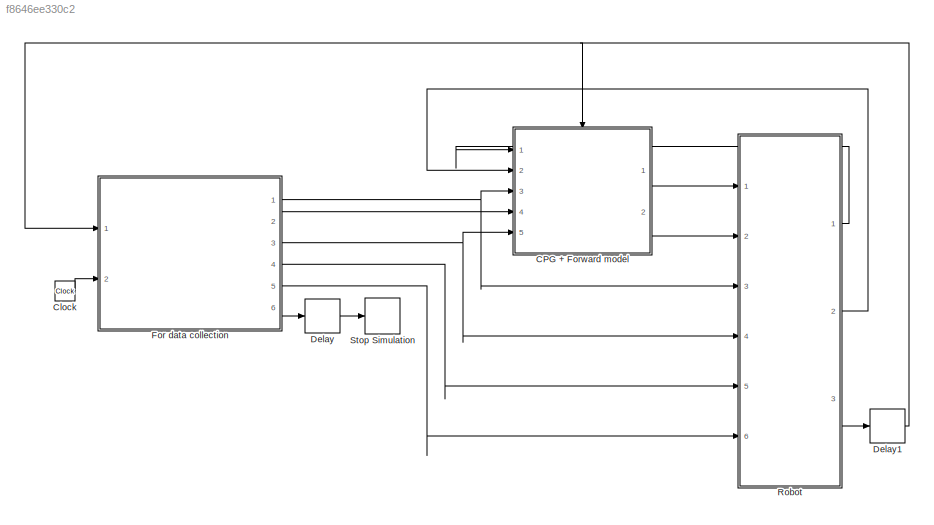
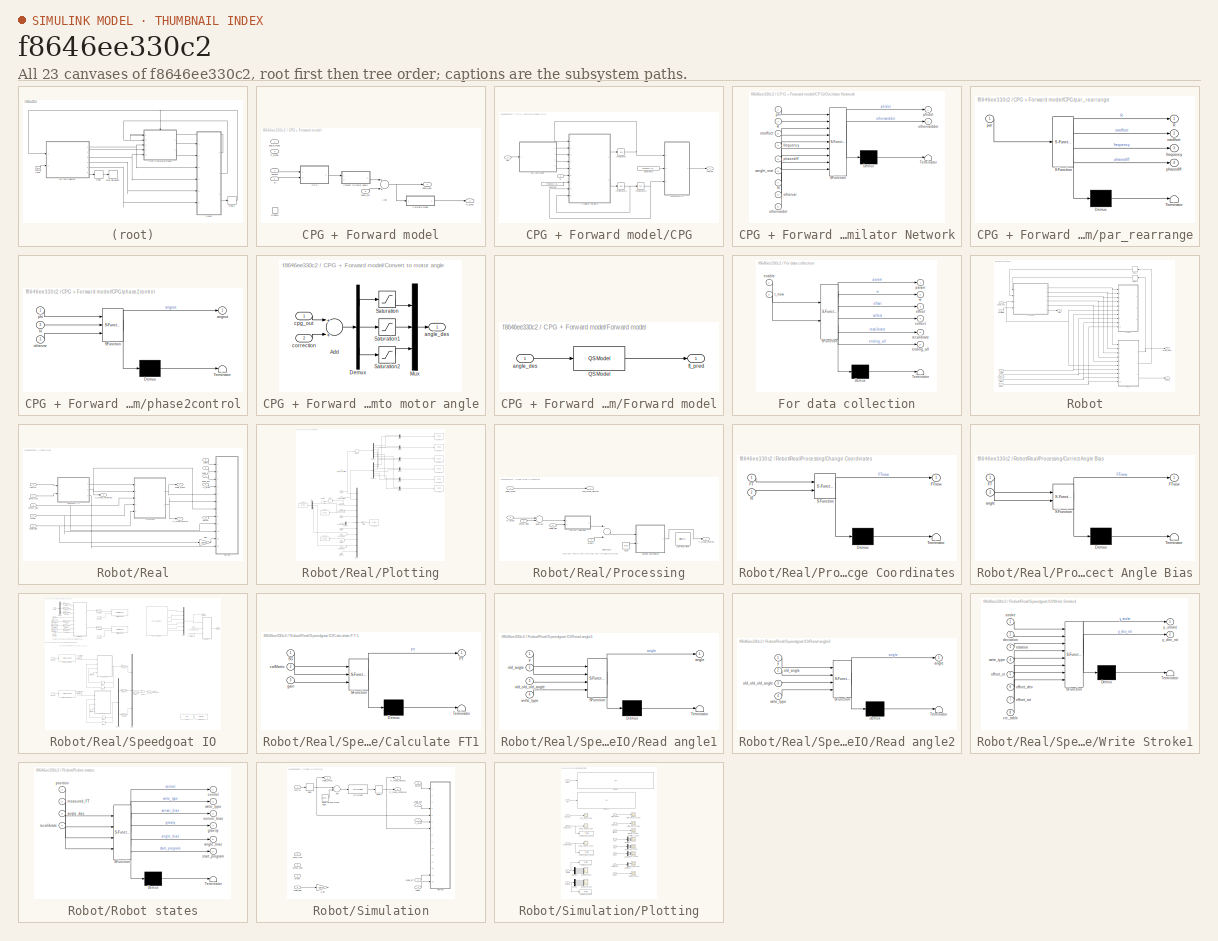
[diagram: thumbnail index - all 23 canvases of the model, root first then tree order]
MODEL slx_f8646ee330c2
KIND model
CONFIG AbsTol = auto
CONFIG FixedStep = auto
CONFIG MaxStep = auto
CONFIG MinStep = auto
CONFIG RelTol = 1e-3
CONFIG SampleTimeConstraint = Unconstrained
CONFIG Solver = VariableStepAuto
CONFIG SolverMode = SingleTasking
CONFIG SolverName = VariableStepAuto
CONFIG StartTime = 0.0
CONFIG StopTime = 10.0
WORKSPACE source: external: MATLAB File  (data not in archive)
BLOCK [SubSystem] CPG + Forward model
  Ports = [5, 2, 1]
  RequestExecContextInheritance = off
  Variant = off
BLOCK [Sum] CPG + Forward model/Add
  InputSameDT = off
  OutDataTypeStr = Inherit: Inherit via internal rule
  Ports = [2, 1]
  SaturateOnIntegerOverflow = off
BLOCK [SubSystem] CPG + Forward model/CPG
  Ports = [2, 1]
  RequestExecContextInheritance = off
  Variant = off
BLOCK [Constant] CPG + Forward model/CPG/Constant
  Value = frequency_multiplier
BLOCK [Constant] CPG + Forward model/CPG/Constant1
  Value = frequency_multiplier
BLOCK [Integrator] CPG + Forward model/CPG/Integrator
  Ports = [1, 1]
BLOCK [Integrator] CPG + Forward model/CPG/Integrator1
  Ports = [1, 1]
BLOCK [Integrator] CPG + Forward model/CPG/Integrator2
  Ports = [1, 1]
BLOCK [SubSystem] CPG + Forward model/CPG/Oscilator Network
  ErrorFcn = Stateflow.Translate.translate
  PermitHierarchicalResolution = ExplicitOnly
  Ports = [9, 2]
  RequestExecContextInheritance = off
  SFBlockType = MATLAB Function
  TreatAsAtomicUnit = on
  Variant = off
BLOCK [Demux] CPG + Forward model/CPG/Oscilator Network/ Demux 
  Outputs = 1
  Ports = [1, 1]
BLOCK [S-Function] CPG + Forward model/CPG/Oscilator Network/ SFunction 
  EnableBusSupport = on
  FunctionName = sf_sfun
  PortCounts = [9 3]
  Ports = [9, 3]
  SFunctionDeploymentMode = off
  Tag = Stateflow S-Function main 5
BLOCK [Terminator] CPG + Forward model/CPG/Oscilator Network/ Terminator 
BLOCK [Inport] CPG + Forward model/CPG/Oscilator Network/N
  IconDisplay = Port number
  Port = 7
BLOCK [Inport] CPG + Forward model/CPG/Oscilator Network/R
  IconDisplay = Port number
  Port = 2
BLOCK [Inport] CPG + Forward model/CPG/Oscilator Network/frequency
  IconDisplay = Port number
  Port = 4
BLOCK [Inport] CPG + Forward model/CPG/Oscilator Network/othervar
  IconDisplay = Port number
  Port = 8
BLOCK [Outport] CPG + Forward model/CPG/Oscilator Network/othervarddot
  IconDisplay = Port number
  Port = 2
BLOCK [Inport] CPG + Forward model/CPG/Oscilator Network/othervardot
  IconDisplay = Port number
  Port = 9
BLOCK [Inport] CPG + Forward model/CPG/Oscilator Network/phasediff
  IconDisplay = Port number
  Port = 5
BLOCK [Inport] CPG + Forward model/CPG/Oscilator Network/phi
  IconDisplay = Port number
BLOCK [Outport] CPG + Forward model/CPG/Oscilator Network/phidot
  IconDisplay = Port number
BLOCK [Inport] CPG + Forward model/CPG/Oscilator Network/rotoffset
  IconDisplay = Port number
  Port = 3
BLOCK [Inport] CPG + Forward model/CPG/Oscilator Network/weight_mat
  IconDisplay = Port number
  Port = 6
BLOCK [Outport] CPG + Forward model/CPG/cpg_out
  IconDisplay = Port number
BLOCK [Inport] CPG + Forward model/CPG/par
  IconDisplay = Port number
BLOCK [SubSystem] CPG + Forward model/CPG/par_rearrange
  ErrorFcn = Stateflow.Translate.translate
  PermitHierarchicalResolution = ExplicitOnly
  Ports = [1, 4]
  RequestExecContextInheritance = off
  SFBlockType = MATLAB Function
  TreatAsAtomicUnit = on
  Variant = off
BLOCK [Demux] CPG + Forward model/CPG/par_rearrange/ Demux 
  Outputs = 1
  Ports = [1, 1]
BLOCK [S-Function] CPG + Forward model/CPG/par_rearrange/ SFunction 
  EnableBusSupport = on
  FunctionName = sf_sfun
  PortCounts = [1 5]
  Ports = [1, 5]
  SFunctionDeploymentMode = off
  Tag = Stateflow S-Function main 1
BLOCK [Terminator] CPG + Forward model/CPG/par_rearrange/ Terminator 
BLOCK [Outport] CPG + Forward model/CPG/par_rearrange/R
  IconDisplay = Port number
BLOCK [Outport] CPG + Forward model/CPG/par_rearrange/frequency
  IconDisplay = Port number
  Port = 3
BLOCK [Inport] CPG + Forward model/CPG/par_rearrange/par
  IconDisplay = Port number
BLOCK [Outport] CPG + Forward model/CPG/par_rearrange/phasediff
  IconDisplay = Port number
  Port = 4
BLOCK [Outport] CPG + Forward model/CPG/par_rearrange/rotoffset
  IconDisplay = Port number
  Port = 2
BLOCK [SubSystem] CPG + Forward model/CPG/phase2control
  ErrorFcn = Stateflow.Translate.translate
  PermitHierarchicalResolution = ExplicitOnly
  Ports = [3, 1]
  RequestExecContextInheritance = off
  SFBlockType = MATLAB Function
  TreatAsAtomicUnit = on
  Variant = off
BLOCK [Demux] CPG + Forward model/CPG/phase2control/ Demux 
  Outputs = 1
  Ports = [1, 1]
BLOCK [S-Function] CPG + Forward model/CPG/phase2control/ SFunction 
  EnableBusSupport = on
  FunctionName = sf_sfun
  PortCounts = [3 2]
  Ports = [3, 2]
  SFunctionDeploymentMode = off
  Tag = Stateflow S-Function main 2
BLOCK [Terminator] CPG + Forward model/CPG/phase2control/ Terminator 
BLOCK [Inport] CPG + Forward model/CPG/phase2control/N
  IconDisplay = Port number
  Port = 2
BLOCK [Outport] CPG + Forward model/CPG/phase2control/angout
  IconDisplay = Port number
BLOCK [Inport] CPG + Forward model/CPG/phase2control/othervar
  IconDisplay = Port number
  Port = 3
BLOCK [Inport] CPG + Forward model/CPG/phase2control/phi
  IconDisplay = Port number
BLOCK [Inport] CPG + Forward model/CPG/w
  IconDisplay = Port number
  Port = 2
BLOCK [SubSystem] CPG + Forward model/Convert to motor angle
  Ports = [2, 1]
  RequestExecContextInheritance = off
  Variant = off
BLOCK [Sum] CPG + Forward model/Convert to motor angle/Add
  InputSameDT = off
  OutDataTypeStr = Inherit: Inherit via internal rule
  Ports = [2, 1]
  SaturateOnIntegerOverflow = off
BLOCK [Demux] CPG + Forward model/Convert to motor angle/Demux
  DisplayOption = bar
  Outputs = 3
  Ports = [1, 3]
BLOCK [Mux] CPG + Forward model/Convert to motor angle/Mux
  DisplayOption = bar
  Inputs = 3
  Ports = [3, 1]
BLOCK [Saturate] CPG + Forward model/Convert to motor angle/Saturation
  InputPortMap = u0
  LowerLimit = -max_stroke
  Ports = [1, 1]
  UpperLimit = max_stroke
BLOCK [Saturate] CPG + Forward model/Convert to motor angle/Saturation1
  InputPortMap = u0
  LowerLimit = -max_dev
  Ports = [1, 1]
  UpperLimit = max_dev
BLOCK [Saturate] CPG + Forward model/Convert to motor angle/Saturation2
  InputPortMap = u0
  LowerLimit = -max_rot
  Ports = [1, 1]
  UpperLimit = max_rot
BLOCK [Outport] CPG + Forward model/Convert to motor angle/angle_des
  IconDisplay = Port number
BLOCK [Inport] CPG + Forward model/Convert to motor angle/correction
  IconDisplay = Port number
  Port = 2
BLOCK [Inport] CPG + Forward model/Convert to motor angle/cpg_out
  IconDisplay = Port number
  Interpolate = off
BLOCK [EnablePort] CPG + Forward model/Enable
  Ports = []
  PropagateVarSize = During execution
  StatesWhenEnabling = reset
BLOCK [SubSystem] CPG + Forward model/Forward model
  Ports = [1, 1]
  RequestExecContextInheritance = off
  Variant = off
BLOCK [Reference] CPG + Forward model/Forward model/QS Model  REF=qs_model/QS Model  (lib defined in slx_6671489f3add)
  Ports = [1, 1]
  SourceBlock = qs_model/QS Model
  SourceType = SubSystem
BLOCK [Inport] CPG + Forward model/Forward model/angle_des
  IconDisplay = Port number
BLOCK [Outport] CPG + Forward model/Forward model/ft_pred
  IconDisplay = Port number
BLOCK [Outport] CPG + Forward model/angle_des
  IconDisplay = Port number
BLOCK [Inport] CPG + Forward model/angle_meas
  IconDisplay = Port number
  PortDimensions = 3
BLOCK [Inport] CPG + Forward model/angle_off
  IconDisplay = Port number
  Port = 5
  PortDimensions = 3
BLOCK [Inport] CPG + Forward model/ft_meas
  IconDisplay = Port number
  Port = 2
  PortDimensions = 6
BLOCK [Outport] CPG + Forward model/ft_pred
  IconDisplay = Port number
  Port = 2
BLOCK [Inport] CPG + Forward model/param
  IconDisplay = Port number
  Port = 3
  PortDimensions = 7
BLOCK [Inport] CPG + Forward model/w
  IconDisplay = Port number
  Port = 4
  PortDimensions = [3,3]
BLOCK [Clock] Clock
BLOCK [Delay] Delay
  DelayLength = 500
  InitialCondition = 0
  InputPortMap = u0
  Ports = [1, 1]
BLOCK [Delay] Delay1
  DelayLength = 1
  InitialCondition = 0
  InputPortMap = u0
  Ports = [1, 1]
BLOCK [SubSystem] For data collection
  ErrorFcn = Stateflow.Translate.translate
  PermitHierarchicalResolution = ExplicitOnly
  Ports = [2, 6]
  RequestExecContextInheritance = off
  SFBlockType = Chart
  TreatAsAtomicUnit = on
  Variant = off
BLOCK [Demux] For data collection/ Demux 
  Outputs = 1
  Ports = [1, 1]
BLOCK [S-Function] For data collection/ SFunction 
  EnableBusSupport = on
  FunctionName = sf_sfun
  Parameters = param_list,weight_adjust,weight_map
  PortCounts = [2 7]
  Ports = [2, 7]
  SFunctionDeploymentMode = off
  Tag = Stateflow S-Function main 8
BLOCK [Terminator] For data collection/ Terminator 
BLOCK [Outport] For data collection/collect
  IconDisplay = Port number
  Port = 4
BLOCK [Inport] For data collection/enable
  IconDisplay = Port number
BLOCK [Outport] For data collection/ending_all
  IconDisplay = Port number
  Port = 6
BLOCK [Outport] For data collection/offset
  IconDisplay = Port number
  Port = 3
BLOCK [Outport] For data collection/param
  IconDisplay = Port number
BLOCK [Outport] For data collection/recalibrate
  IconDisplay = Port number
  Port = 5
BLOCK [Inport] For data collection/t_now
  IconDisplay = Port number
  Port = 2
BLOCK [Outport] For data collection/w
  IconDisplay = Port number
  Port = 2
BLOCK [SubSystem] Robot
  Ports = [6, 3]
  RequestExecContextInheritance = off
  Variant = off
BLOCK [Delay] Robot/Delay1
  DelayLength = 1
  InitialCondition = zeros(6,1)
  InputPortMap = u0
  Ports = [1, 1]
BLOCK [Delay] Robot/Delay2
  DelayLength = 1
  InitialCondition = zeros(3,1)
  InputPortMap = u0
  Ports = [1, 1]
BLOCK [SubSystem] Robot/Real
  Ports = [10, 3]
  RequestExecContextInheritance = off
  Variant = off
BLOCK [Gain] Robot/Real/Gain
  Gain = 180/pi
  OutDataTypeStr = Inherit: Inherit via internal rule
  ParamDataTypeStr = Inherit: Inherit via internal rule
  SaturateOnIntegerOverflow = off
BLOCK [SubSystem] Robot/Real/Plotting
  Ports = [12]
  RequestExecContextInheritance = off
  Variant = off
BLOCK [Delay] Robot/Real/Plotting/Delay
  DelayLength = 8
  InputPortMap = u0
  Ports = [1, 1]
BLOCK [Delay] Robot/Real/Plotting/Delay1
  DelayLength = 8
  InitialCondition = 0
  InputPortMap = u0
  Ports = [1, 1]
BLOCK [Demux] Robot/Real/Plotting/Demux1
  DisplayOption = bar
  Outputs = 6
  Ports = [1, 6]
BLOCK [Demux] Robot/Real/Plotting/Demux2
  DisplayOption = bar
  Outputs = 6
  Ports = [1, 6]
BLOCK [Demux] Robot/Real/Plotting/Demux3
  DisplayOption = bar
  Outputs = 3
  Ports = [1, 3]
BLOCK [Gain] Robot/Real/Plotting/Gain
  OutDataTypeStr = Inherit: Inherit via internal rule
  ParamDataTypeStr = Inherit: Inherit via internal rule
  SaturateOnIntegerOverflow = off
BLOCK [Mux] Robot/Real/Plotting/Mux
  DisplayOption = bar
  Inputs = 2
  Ports = [2, 1]
BLOCK [Mux] Robot/Real/Plotting/Mux1
  DisplayOption = bar
  Inputs = 11
  Ports = [11, 1]
BLOCK [Mux] Robot/Real/Plotting/Mux2
  DisplayOption = bar
  Inputs = 2
  Ports = [2, 1]
BLOCK [Mux] Robot/Real/Plotting/Mux3
  DisplayOption = bar
  Inputs = 2
  Ports = [2, 1]
BLOCK [Mux] Robot/Real/Plotting/Mux4
  DisplayOption = bar
  Inputs = 2
  Ports = [2, 1]
BLOCK [Mux] Robot/Real/Plotting/Mux5
  DisplayOption = bar
  Inputs = 2
  Ports = [2, 1]
BLOCK [Mux] Robot/Real/Plotting/Mux6
  DisplayOption = bar
  Inputs = 2
  Ports = [2, 1]
BLOCK [Mux] Robot/Real/Plotting/Mux7
  DisplayOption = bar
  Inputs = 3
  Ports = [3, 1]
BLOCK [Reference] Robot/Real/Plotting/Scope 1  REF=slrtlib/Displays and
Logging/Scope 
  Ports = [1]
  SourceBlock = slrtlib/Displays and\nLogging/Scope
  SourceType = xpcscopeblock
BLOCK [Reference] Robot/Real/Plotting/Scope 10  REF=slrtlib/Displays and
Logging/Scope 
  Ports = [1]
  SourceBlock = slrtlib/Displays and\nLogging/Scope
  SourceType = xpcscopeblock
BLOCK [Reference] Robot/Real/Plotting/Scope 2  REF=slrtlib/Displays and
Logging/Scope 
  Ports = [1]
  SourceBlock = slrtlib/Displays and\nLogging/Scope
  SourceType = xpcscopeblock
BLOCK [Reference] Robot/Real/Plotting/Scope 3  REF=slrtlib/Displays and
Logging/Scope 
  Ports = [1]
  SourceBlock = slrtlib/Displays and\nLogging/Scope
  SourceType = xpcscopeblock
BLOCK [Reference] Robot/Real/Plotting/Scope 4  REF=slrtlib/Displays and
Logging/Scope 
  Ports = [1]
  SourceBlock = slrtlib/Displays and\nLogging/Scope
  SourceType = xpcscopeblock
BLOCK [Reference] Robot/Real/Plotting/Scope 5  REF=slrtlib/Displays and
Logging/Scope 
  Ports = [1]
  SourceBlock = slrtlib/Displays and\nLogging/Scope
  SourceType = xpcscopeblock
BLOCK [Reference] Robot/Real/Plotting/Scope 6  REF=slrtlib/Displays and
Logging/Scope 
  Ports = [1]
  SourceBlock = slrtlib/Displays and\nLogging/Scope
  SourceType = xpcscopeblock
BLOCK [Reference] Robot/Real/Plotting/Scope 7  REF=slrtlib/Displays and
Logging/Scope 
  Ports = [1]
  SourceBlock = slrtlib/Displays and\nLogging/Scope
  SourceType = xpcscopeblock
BLOCK [Reference] Robot/Real/Plotting/Scope 8  REF=slrtlib/Displays and
Logging/Scope 
  Ports = [1]
  SourceBlock = slrtlib/Displays and\nLogging/Scope
  SourceType = xpcscopeblock
BLOCK [Reference] Robot/Real/Plotting/Scope 9  REF=slrtlib/Displays and
Logging/Scope 
  Ports = [1]
  SourceBlock = slrtlib/Displays and\nLogging/Scope
  SourceType = xpcscopeblock
BLOCK [Sum] Robot/Real/Plotting/Subtract
  InputSameDT = off
  Inputs = -+
  OutDataTypeStr = Inherit: Inherit via internal rule
  Ports = [2, 1]
  SaturateOnIntegerOverflow = off
BLOCK [Inport] Robot/Real/Plotting/angle_bias
  IconDisplay = Port number
  Port = 11
BLOCK [Inport] Robot/Real/Plotting/angle_des
  IconDisplay = Port number
  Port = 3
BLOCK [Inport] Robot/Real/Plotting/angle_meas
  IconDisplay = Port number
  Port = 5
BLOCK [Inport] Robot/Real/Plotting/angle_offset
  IconDisplay = Port number
  Port = 2
BLOCK [Inport] Robot/Real/Plotting/collect
  IconDisplay = Port number
BLOCK [Inport] Robot/Real/Plotting/ft_meas_filtered
  IconDisplay = Port number
  Port = 6
BLOCK [Inport] Robot/Real/Plotting/ft_meas_unfiltered
  IconDisplay = Port number
  Port = 7
BLOCK [Inport] Robot/Real/Plotting/ft_pred
  IconDisplay = Port number
  Port = 4
BLOCK [Inport] Robot/Real/Plotting/gravity
  IconDisplay = Port number
  Port = 10
BLOCK [Inport] Robot/Real/Plotting/param
  IconDisplay = Port number
  Port = 8
BLOCK [Inport] Robot/Real/Plotting/sensor_bias
  IconDisplay = Port number
  Port = 9
BLOCK [Inport] Robot/Real/Plotting/voltages
  IconDisplay = Port number
  Port = 12
BLOCK [SubSystem] Robot/Real/Processing
  Ports = [5, 2]
  RequestExecContextInheritance = off
  Variant = off
BLOCK [SubSystem] Robot/Real/Processing/Change Coordinates
  ErrorFcn = Stateflow.Translate.translate
  PermitHierarchicalResolution = ExplicitOnly
  Ports = [2, 1]
  RequestExecContextInheritance = off
  SFBlockType = MATLAB Function
  TreatAsAtomicUnit = on
  Variant = off
BLOCK [Demux] Robot/Real/Processing/Change Coordinates/ Demux 
  Outputs = 1
  Ports = [1, 1]
BLOCK [S-Function] Robot/Real/Processing/Change Coordinates/ SFunction 
  EnableBusSupport = on
  FunctionName = sf_sfun
  PortCounts = [2 2]
  Ports = [2, 2]
  SFunctionDeploymentMode = off
  Tag = Stateflow S-Function main 7
BLOCK [Terminator] Robot/Real/Processing/Change Coordinates/ Terminator 
BLOCK [Inport] Robot/Real/Processing/Change Coordinates/FT
  IconDisplay = Port number
BLOCK [Outport] Robot/Real/Processing/Change Coordinates/FTnew
  IconDisplay = Port number
BLOCK [Inport] Robot/Real/Processing/Change Coordinates/R
  IconDisplay = Port number
  Port = 2
BLOCK [SubSystem] Robot/Real/Processing/Correct Angle Bias
  ErrorFcn = Stateflow.Translate.translate
  PermitHierarchicalResolution = ExplicitOnly
  Ports = [2, 1]
  RequestExecContextInheritance = off
  SFBlockType = MATLAB Function
  TreatAsAtomicUnit = on
  Variant = off
BLOCK [Demux] Robot/Real/Processing/Correct Angle Bias/ Demux 
  Outputs = 1
  Ports = [1, 1]
BLOCK [S-Function] Robot/Real/Processing/Correct Angle Bias/ SFunction 
  EnableBusSupport = on
  FunctionName = sf_sfun
  PortCounts = [2 2]
  Ports = [2, 2]
  SFunctionDeploymentMode = off
  Tag = Stateflow S-Function main 4
BLOCK [Terminator] Robot/Real/Processing/Correct Angle Bias/ Terminator 
BLOCK [Inport] Robot/Real/Processing/Correct Angle Bias/FT
  IconDisplay = Port number
BLOCK [Outport] Robot/Real/Processing/Correct Angle Bias/FTnew
  IconDisplay = Port number
BLOCK [Inport] Robot/Real/Processing/Correct Angle Bias/angle
  IconDisplay = Port number
  Port = 2
BLOCK [Reference] Robot/Real/Processing/Low Pass Filter  REF=dsparch4/Digital
Filter Design
  Commented = on
  Ports = [1, 1]
  SourceBlock = dsparch4/Digital\nFilter Design
  SourceType = Digital Filter Design
  UserDataPersistent = on
BLOCK [Constant] Robot/Real/Processing/R_ds
  Value = R_ds
BLOCK [Sum] Robot/Real/Processing/Subtract
  InputSameDT = off
  Inputs = +-
  OutDataTypeStr = Inherit: Inherit via internal rule
  Ports = [2, 1]
  SaturateOnIntegerOverflow = off
BLOCK [Sum] Robot/Real/Processing/Subtract2
  InputSameDT = off
  Inputs = +-
  OutDataTypeStr = Inherit: Inherit via internal rule
  Ports = [2, 1]
  SaturateOnIntegerOverflow = off
BLOCK [Outport] Robot/Real/Processing/ang_meas_filtered
  IconDisplay = Port number
BLOCK [Inport] Robot/Real/Processing/angle_bias
  IconDisplay = Port number
  Port = 5
BLOCK [Inport] Robot/Real/Processing/angle_meas
  IconDisplay = Port number
BLOCK [Inport] Robot/Real/Processing/ft_meas
  IconDisplay = Port number
  Port = 2
BLOCK [Outport] Robot/Real/Processing/ft_meas_filtered
  IconDisplay = Port number
  Port = 2
BLOCK [Inport] Robot/Real/Processing/gravity
  IconDisplay = Port number
  Port = 4
BLOCK [Inport] Robot/Real/Processing/sensor_bias
  IconDisplay = Port number
  Port = 3
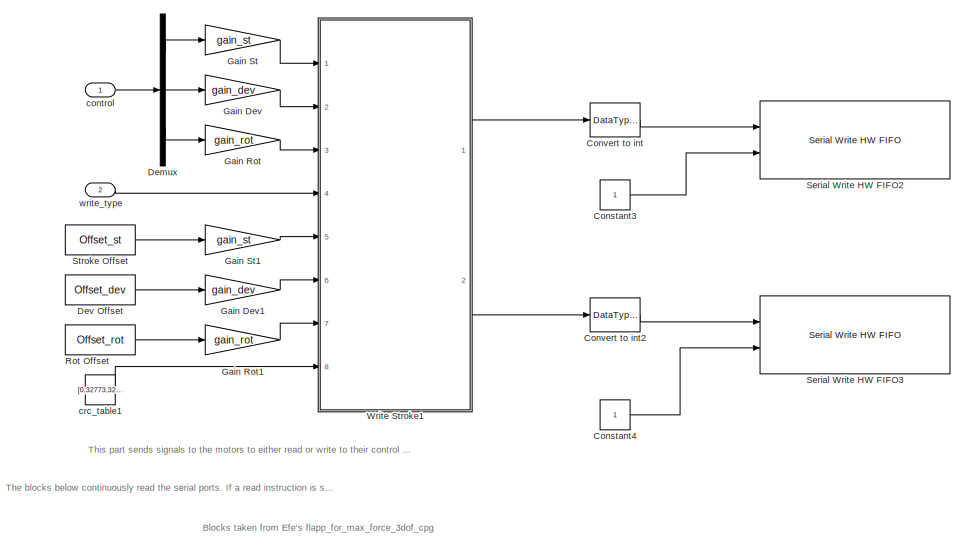
[diagram: Robot/Real/Speedgoat IO - part 1/4, top left region]
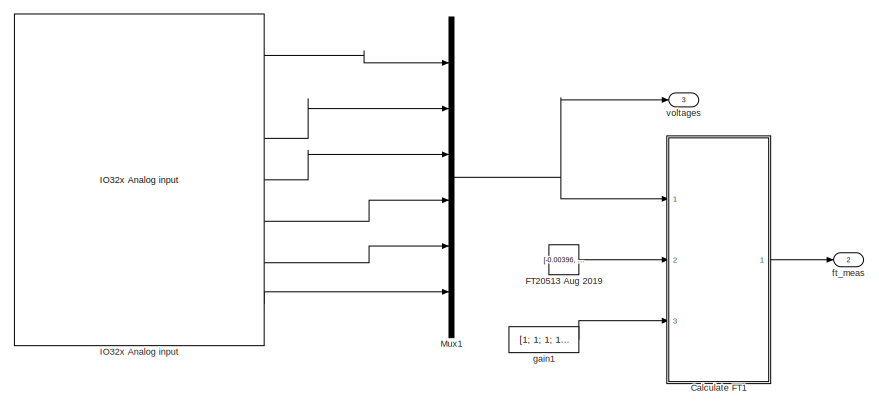
[diagram: Robot/Real/Speedgoat IO - part 2/4, top right region]
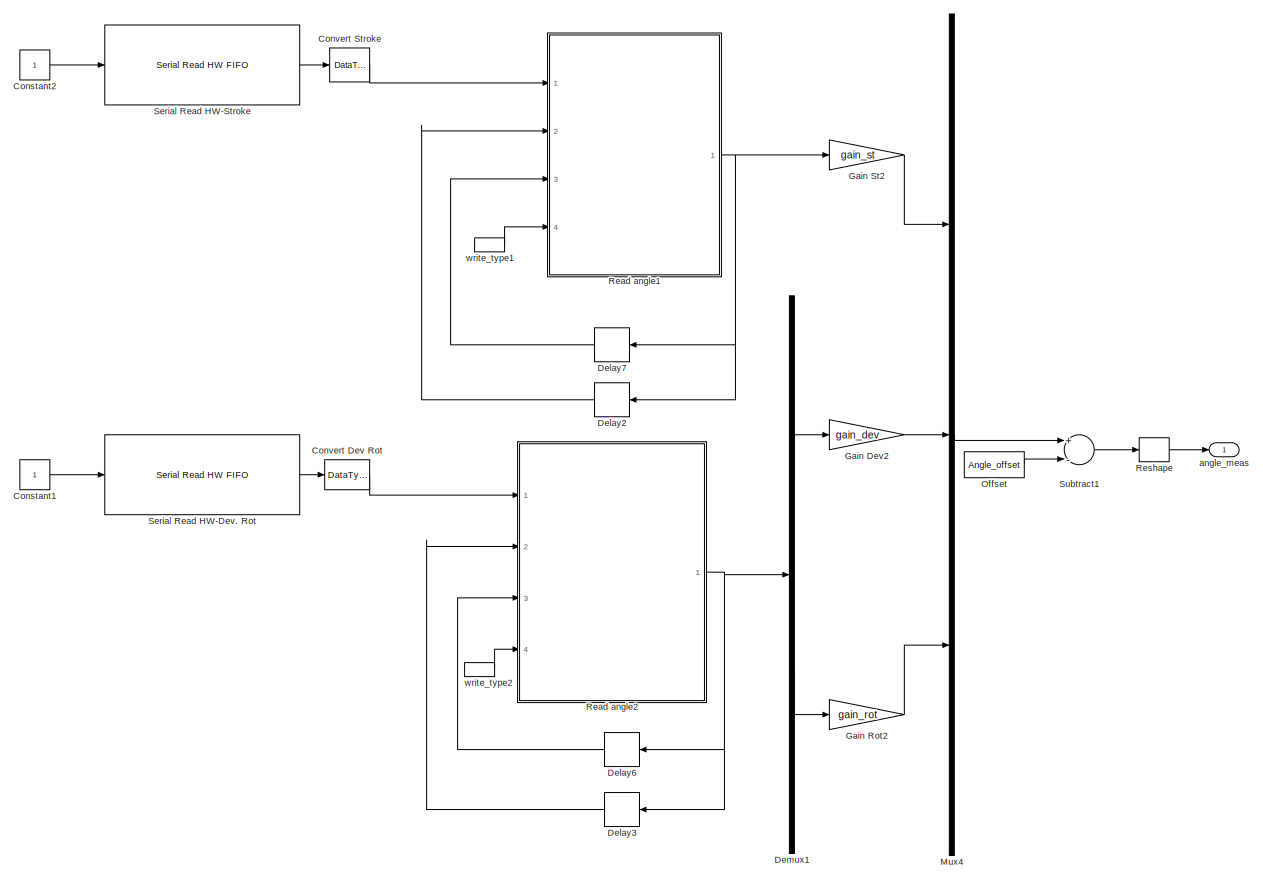
[diagram: Robot/Real/Speedgoat IO - part 3/4, bottom center region]
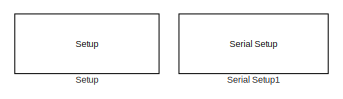
[diagram: Robot/Real/Speedgoat IO - part 4/4, bottom right region]
BLOCK [SubSystem] Robot/Real/Speedgoat IO
  Ports = [2, 3]
  RequestExecContextInheritance = off
  Variant = off
BLOCK [Constant] Robot/Real/Speedgoat IO/ Offset
  Value = Angle_offset
  VectorParams1D = off
BLOCK [SubSystem] Robot/Real/Speedgoat IO/Calculate FT1
  ErrorFcn = Stateflow.Translate.translate
  PermitHierarchicalResolution = ExplicitOnly
  Ports = [3, 1]
  RequestExecContextInheritance = off
  SFBlockType = MATLAB Function
  TreatAsAtomicUnit = on
  Variant = off
BLOCK [Demux] Robot/Real/Speedgoat IO/Calculate FT1/ Demux 
  Outputs = 1
  Ports = [1, 1]
BLOCK [S-Function] Robot/Real/Speedgoat IO/Calculate FT1/ SFunction 
  EnableBusSupport = on
  FunctionName = sf_sfun
  PortCounts = [3 2]
  Ports = [3, 2]
  SFunctionDeploymentMode = off
  Tag = Stateflow S-Function main 6
BLOCK [Terminator] Robot/Real/Speedgoat IO/Calculate FT1/ Terminator 
BLOCK [Outport] Robot/Real/Speedgoat IO/Calculate FT1/FT
  IconDisplay = Port number
BLOCK [Inport] Robot/Real/Speedgoat IO/Calculate FT1/SG
  IconDisplay = Port number
BLOCK [Inport] Robot/Real/Speedgoat IO/Calculate FT1/calMatrix
  IconDisplay = Port number
  Port = 2
BLOCK [Inport] Robot/Real/Speedgoat IO/Calculate FT1/gain
  IconDisplay = Port number
  Port = 3
BLOCK [Constant] Robot/Real/Speedgoat IO/Constant1
  OutDataTypeStr = Inherit: Inherit via back propagation
BLOCK [Constant] Robot/Real/Speedgoat IO/Constant2
  OutDataTypeStr = Inherit: Inherit via back propagation
BLOCK [Constant] Robot/Real/Speedgoat IO/Constant3
  OutDataTypeStr = Inherit: Inherit via back propagation
BLOCK [Constant] Robot/Real/Speedgoat IO/Constant4
  OutDataTypeStr = Inherit: Inherit via back propagation
BLOCK [DataTypeConversion] Robot/Real/Speedgoat IO/Convert Dev Rot
  RndMeth = Floor
  SaturateOnIntegerOverflow = off
BLOCK [DataTypeConversion] Robot/Real/Speedgoat IO/Convert Stroke
  RndMeth = Floor
  SaturateOnIntegerOverflow = off
BLOCK [DataTypeConversion] Robot/Real/Speedgoat IO/Convert to int
  RndMeth = Floor
  SaturateOnIntegerOverflow = off
BLOCK [DataTypeConversion] Robot/Real/Speedgoat IO/Convert to int2
  RndMeth = Floor
  SaturateOnIntegerOverflow = off
BLOCK [Delay] Robot/Real/Speedgoat IO/Delay2
  DelayLength = 1
  InputPortMap = u0
  Ports = [1, 1]
  SampleTime = step_time
BLOCK [Delay] Robot/Real/Speedgoat IO/Delay3
  DelayLength = 1
  InputPortMap = u0
  Ports = [1, 1]
  SampleTime = step_time
BLOCK [Delay] Robot/Real/Speedgoat IO/Delay6
  DelayLength = 3
  InputPortMap = u0
  Ports = [1, 1]
  SampleTime = step_time
BLOCK [Delay] Robot/Real/Speedgoat IO/Delay7
  DelayLength = 3
  InputPortMap = u0
  Ports = [1, 1]
  SampleTime = step_time
BLOCK [Demux] Robot/Real/Speedgoat IO/Demux
  DisplayOption = bar
  Outputs = 3
  Ports = [1, 3]
BLOCK [Demux] Robot/Real/Speedgoat IO/Demux1
  DisplayOption = bar
  Outputs = 2
  Ports = [1, 2]
BLOCK [Constant] Robot/Real/Speedgoat IO/Dev Offset
  Value = Offset_dev
  VectorParams1D = off
BLOCK [Constant] Robot/Real/Speedgoat IO/FT20513 Aug 2019
  Value = [-0.00396,  -0.02626,  -0.00148,  -1.65041,   0.05372,   1.61165;-0.00147,   2.05926,  -0.01141,  -0.98505,  -0.01508,  -0.91035; 1.88736,  -0.01982,   1.94791,  -0.03636,   1.85673,  -0.02132;-0.06688,  12.60494,  10.47872,  -6.15582, -10.64754,  -5.52308; -11.71646,   0.24827,   6.66712,   9.99714,   6.01967,  -9.86076;0.06228,   7.36314,  -0.02169,   7.00298,   0.22315,   7.33845]
  VectorParams1D = off
BLOCK [Gain] Robot/Real/Speedgoat IO/Gain Dev
  Gain = gain_dev
  OutDataTypeStr = Inherit: Inherit via internal rule
  ParamDataTypeStr = Inherit: Inherit via internal rule
  SaturateOnIntegerOverflow = off
BLOCK [Gain] Robot/Real/Speedgoat IO/Gain Dev1
  Gain = gain_dev
  OutDataTypeStr = Inherit: Inherit via internal rule
  ParamDataTypeStr = Inherit: Inherit via internal rule
  SaturateOnIntegerOverflow = off
BLOCK [Gain] Robot/Real/Speedgoat IO/Gain Dev2
  Gain = gain_dev
  OutDataTypeStr = Inherit: Inherit via internal rule
  ParamDataTypeStr = Inherit: Inherit via internal rule
  SaturateOnIntegerOverflow = off
BLOCK [Gain] Robot/Real/Speedgoat IO/Gain Rot
  Gain = gain_rot
  OutDataTypeStr = Inherit: Inherit via internal rule
  ParamDataTypeStr = Inherit: Inherit via internal rule
  SaturateOnIntegerOverflow = off
BLOCK [Gain] Robot/Real/Speedgoat IO/Gain Rot1
  Gain = gain_rot
  OutDataTypeStr = Inherit: Inherit via internal rule
  ParamDataTypeStr = Inherit: Inherit via internal rule
  SaturateOnIntegerOverflow = off
BLOCK [Gain] Robot/Real/Speedgoat IO/Gain Rot2
  Gain = gain_rot
  OutDataTypeStr = Inherit: Inherit via internal rule
  ParamDataTypeStr = Inherit: Inherit via internal rule
  SaturateOnIntegerOverflow = off
BLOCK [Gain] Robot/Real/Speedgoat IO/Gain St
  Gain = gain_st
  OutDataTypeStr = Inherit: Inherit via internal rule
  ParamDataTypeStr = Inherit: Inherit via internal rule
  SaturateOnIntegerOverflow = off
BLOCK [Gain] Robot/Real/Speedgoat IO/Gain St1
  Gain = gain_st
  OutDataTypeStr = Inherit: Inherit via internal rule
  ParamDataTypeStr = Inherit: Inherit via internal rule
  SaturateOnIntegerOverflow = off
BLOCK [Gain] Robot/Real/Speedgoat IO/Gain St2
  Gain = gain_st
  OutDataTypeStr = Inherit: Inherit via internal rule
  ParamDataTypeStr = Inherit: Inherit via internal rule
  SaturateOnIntegerOverflow = off
BLOCK [Reference] Robot/Real/Speedgoat IO/IO32x Analog input  REF=speedgoatlib_fpga/Analog IO/IO32x Analog input
  Ports = [0, 7]
  SourceBlock = speedgoatlib_fpga/Analog IO/IO32x Analog input
  SourceType = ad_IO32x_fpga_1
BLOCK [Mux] Robot/Real/Speedgoat IO/Mux1
  DisplayOption = bar
  Inputs = 6
  Ports = [6, 1]
BLOCK [Mux] Robot/Real/Speedgoat IO/Mux4
  DisplayOption = bar
  Inputs = 3
  Ports = [3, 1]
BLOCK [SubSystem] Robot/Real/Speedgoat IO/Read angle1
  ErrorFcn = Stateflow.Translate.translate
  PermitHierarchicalResolution = ExplicitOnly
  Ports = [4, 1]
  RequestExecContextInheritance = off
  SFBlockType = MATLAB Function
  TreatAsAtomicUnit = on
  Variant = off
BLOCK [Demux] Robot/Real/Speedgoat IO/Read angle1/ Demux 
  Outputs = 1
  Ports = [1, 1]
BLOCK [S-Function] Robot/Real/Speedgoat IO/Read angle1/ SFunction 
  EnableBusSupport = on
  FunctionName = sf_sfun
  PortCounts = [4 2]
  Ports = [4, 2]
  SFunctionDeploymentMode = off
  Tag = Stateflow S-Function main 10
BLOCK [Terminator] Robot/Real/Speedgoat IO/Read angle1/ Terminator 
BLOCK [Outport] Robot/Real/Speedgoat IO/Read angle1/angle
  IconDisplay = Port number
BLOCK [Inport] Robot/Real/Speedgoat IO/Read angle1/old_angle
  IconDisplay = Port number
  Port = 2
BLOCK [Inport] Robot/Real/Speedgoat IO/Read angle1/old_old_old_angle
  IconDisplay = Port number
  Port = 3
BLOCK [Inport] Robot/Real/Speedgoat IO/Read angle1/write_type
  IconDisplay = Port number
  Port = 4
BLOCK [Inport] Robot/Real/Speedgoat IO/Read angle1/y
  IconDisplay = Port number
BLOCK [SubSystem] Robot/Real/Speedgoat IO/Read angle2
  ErrorFcn = Stateflow.Translate.translate
  PermitHierarchicalResolution = ExplicitOnly
  Ports = [4, 1]
  RequestExecContextInheritance = off
  SFBlockType = MATLAB Function
  TreatAsAtomicUnit = on
  Variant = off
BLOCK [Demux] Robot/Real/Speedgoat IO/Read angle2/ Demux 
  Outputs = 1
  Ports = [1, 1]
BLOCK [S-Function] Robot/Real/Speedgoat IO/Read angle2/ SFunction 
  EnableBusSupport = on
  FunctionName = sf_sfun
  PortCounts = [4 2]
  Ports = [4, 2]
  SFunctionDeploymentMode = off
  Tag = Stateflow S-Function main 11
BLOCK [Terminator] Robot/Real/Speedgoat IO/Read angle2/ Terminator 
BLOCK [Outport] Robot/Real/Speedgoat IO/Read angle2/angle
  IconDisplay = Port number
BLOCK [Inport] Robot/Real/Speedgoat IO/Read angle2/old_angle
  IconDisplay = Port number
  Port = 2
BLOCK [Inport] Robot/Real/Speedgoat IO/Read angle2/old_old_old_angle
  IconDisplay = Port number
  Port = 3
BLOCK [Inport] Robot/Real/Speedgoat IO/Read angle2/write_type
  IconDisplay = Port number
  Port = 4
BLOCK [Inport] Robot/Real/Speedgoat IO/Read angle2/y
  IconDisplay = Port number
BLOCK [Reshape] Robot/Real/Speedgoat IO/Reshape
  Ports = [1, 1]
BLOCK [Constant] Robot/Real/Speedgoat IO/Rot Offset
  Value = Offset_rot
  VectorParams1D = off
BLOCK [Reference] Robot/Real/Speedgoat IO/Serial Read HW-Dev. Rot  REF=speedgoatlib_fpga/Serial/Serial Read HW FIFO
  Ports = [1, 1]
  SourceBlock = speedgoatlib_fpga/Serial/Serial Read HW FIFO
  SourceType = serialread_fpga_1
BLOCK [Reference] Robot/Real/Speedgoat IO/Serial Read HW-Stroke  REF=speedgoatlib_fpga/Serial/Serial Read HW FIFO
  Ports = [1, 1]
  SourceBlock = speedgoatlib_fpga/Serial/Serial Read HW FIFO
  SourceType = serialread_fpga_1
BLOCK [Reference] Robot/Real/Speedgoat IO/Serial Setup1  REF=speedgoatlib_fpga/Serial/Serial Setup
  Ports = []
  SourceBlock = speedgoatlib_fpga/Serial/Serial Setup
  SourceType = serial_fpga_1
BLOCK [Reference] Robot/Real/Speedgoat IO/Serial Write HW FIFO2  REF=speedgoatlib_fpga/Serial/Serial Write HW FIFO
  Ports = [2]
  SourceBlock = speedgoatlib_fpga/Serial/Serial Write HW FIFO
  SourceType = serialwrite_fpga_1
BLOCK [Reference] Robot/Real/Speedgoat IO/Serial Write HW FIFO3  REF=speedgoatlib_fpga/Serial/Serial Write HW FIFO
  Ports = [2]
  SourceBlock = speedgoatlib_fpga/Serial/Serial Write HW FIFO
  SourceType = serialwrite_fpga_1
BLOCK [Reference] Robot/Real/Speedgoat IO/Setup  REF=speedgoatlib_fpga/Setup/Setup
  Ports = []
  SourceBlock = speedgoatlib_fpga/Setup/Setup
  SourceType = setup_IO316-IO318, IO331
BLOCK [Constant] Robot/Real/Speedgoat IO/Stroke Offset
  Value = Offset_st
BLOCK [Sum] Robot/Real/Speedgoat IO/Subtract1
  InputSameDT = off
  Inputs = +-
  OutDataTypeStr = Inherit: Inherit via internal rule
  Ports = [2, 1]
  SaturateOnIntegerOverflow = off
BLOCK [SubSystem] Robot/Real/Speedgoat IO/Write Stroke1
  ErrorFcn = Stateflow.Translate.translate
  PermitHierarchicalResolution = ExplicitOnly
  Ports = [8, 2]
  RequestExecContextInheritance = off
  SFBlockType = MATLAB Function
  TreatAsAtomicUnit = on
  Variant = off
BLOCK [Demux] Robot/Real/Speedgoat IO/Write Stroke1/ Demux 
  Outputs = 1
  Ports = [1, 1]
BLOCK [S-Function] Robot/Real/Speedgoat IO/Write Stroke1/ SFunction 
  EnableBusSupport = on
  FunctionName = sf_sfun
  PortCounts = [8 3]
  Ports = [8, 3]
  SFunctionDeploymentMode = off
  Tag = Stateflow S-Function main 16
BLOCK [Terminator] Robot/Real/Speedgoat IO/Write Stroke1/ Terminator 
BLOCK [Inport] Robot/Real/Speedgoat IO/Write Stroke1/crc_table
  IconDisplay = Port number
  Port = 8
BLOCK [Inport] Robot/Real/Speedgoat IO/Write Stroke1/deviation
  IconDisplay = Port number
  Port = 2
BLOCK [Inport] Robot/Real/Speedgoat IO/Write Stroke1/offset_dev
  IconDisplay = Port number
  Port = 6
BLOCK [Inport] Robot/Real/Speedgoat IO/Write Stroke1/offset_rot
  IconDisplay = Port number
  Port = 7
BLOCK [Inport] Robot/Real/Speedgoat IO/Write Stroke1/offset_st
  IconDisplay = Port number
  Port = 5
BLOCK [Inport] Robot/Real/Speedgoat IO/Write Stroke1/rotation
  IconDisplay = Port number
  Port = 3
BLOCK [Inport] Robot/Real/Speedgoat IO/Write Stroke1/stroke
  IconDisplay = Port number
BLOCK [Inport] Robot/Real/Speedgoat IO/Write Stroke1/write_type
  IconDisplay = Port number
  Port = 4
BLOCK [Outport] Robot/Real/Speedgoat IO/Write Stroke1/y_dev_rot
  IconDisplay = Port number
  Port = 2
BLOCK [Outport] Robot/Real/Speedgoat IO/Write Stroke1/y_stroke
  IconDisplay = Port number
BLOCK [Outport] Robot/Real/Speedgoat IO/angle_meas
  IconDisplay = Port number
BLOCK [Inport] Robot/Real/Speedgoat IO/control
  IconDisplay = Port number
BLOCK [Constant] Robot/Real/Speedgoat IO/crc_table1
  OutDataTypeStr = Inherit: Inherit via back propagation
  Value = [0,32773,32783,10,32795,30,20,32785,32819,54,60,32825,40,32813,32807,34,32867,102,108,32873,120,32893,32887,114,80,32853,32863,90,32843,78,68,32833,32963,198,204,32969,216,32989,32983,210,240,33013,33023,250,33003,238,228,32993,160,32933,32943,170,32955,190,180,32945,32915,150,156,32921,136,32909,32903,130,33155,390,396,33161,408,33181,33175,402,432,33205,33215,442,33195,430,420,33185,480,33253,33...<+871ch>
BLOCK [Outport] Robot/Real/Speedgoat IO/ft_meas
  IconDisplay = Port number
  Port = 2
BLOCK [Constant] Robot/Real/Speedgoat IO/gain1
  Value = [1; 1; 1; 1; 1; 1]
BLOCK [Outport] Robot/Real/Speedgoat IO/voltages
  IconDisplay = Port number
  Port = 3
BLOCK [Inport] Robot/Real/Speedgoat IO/write_type
  IconDisplay = Port number
  Port = 2
BLOCK [InportShadow] Robot/Real/Speedgoat IO/write_type1
  IconDisplay = Port number
  Port = 2
BLOCK [InportShadow] Robot/Real/Speedgoat IO/write_type2
  IconDisplay = Port number
  Port = 2
BLOCK [Inport] Robot/Real/angle_bias
  IconDisplay = Port number
  Port = 5
BLOCK [Inport] Robot/Real/angle_des
  IconDisplay = Port number
  Port = 6
BLOCK [Outport] Robot/Real/angle_meas
  IconDisplay = Port number
BLOCK [Inport] Robot/Real/angle_off
  IconDisplay = Port number
  Port = 8
BLOCK [Inport] Robot/Real/collect
  IconDisplay = Port number
  Port = 9
BLOCK [Inport] Robot/Real/control
  IconDisplay = Port number
BLOCK [Outport] Robot/Real/ft_meas_filtered
  IconDisplay = Port number
  Port = 3
BLOCK [Outport] Robot/Real/ft_meas_unfiltered
  IconDisplay = Port number
  Port = 2
BLOCK [Inport] Robot/Real/ft_pred
  IconDisplay = Port number
  Port = 7
BLOCK [Inport] Robot/Real/gravity
  IconDisplay = Port number
  Port = 4
BLOCK [Inport] Robot/Real/param
  IconDisplay = Port number
  Port = 10
BLOCK [Inport] Robot/Real/sensor_bias
  IconDisplay = Port number
  Port = 3
BLOCK [Inport] Robot/Real/write_type
  IconDisplay = Port number
  Port = 2
BLOCK [SubSystem] Robot/Robot states
  ErrorFcn = Stateflow.Translate.translate
  PermitHierarchicalResolution = ExplicitOnly
  Ports = [4, 6]
  RequestExecContextInheritance = off
  SFBlockType = Chart
  TreatAsAtomicUnit = on
  Variant = off
BLOCK [Demux] Robot/Robot states/ Demux 
  Outputs = 1
  Ports = [1, 1]
BLOCK [S-Function] Robot/Robot states/ SFunction 
  EnableBusSupport = on
  FunctionName = sf_sfun
  Parameters = gain_rot
  PortCounts = [4 7]
  Ports = [4, 7]
  SFunctionDeploymentMode = off
  Tag = Stateflow S-Function main 3
BLOCK [Terminator] Robot/Robot states/ Terminator 
BLOCK [Outport] Robot/Robot states/angle_bias
  IconDisplay = Port number
  Port = 5
BLOCK [Inport] Robot/Robot states/angle_des
  IconDisplay = Port number
  Port = 3
BLOCK [Outport] Robot/Robot states/control
  IconDisplay = Port number
BLOCK [Outport] Robot/Robot states/gravity
  IconDisplay = Port number
  Port = 4
BLOCK [Inport] Robot/Robot states/measured_FT
  IconDisplay = Port number
  Port = 2
BLOCK [Inport] Robot/Robot states/position
  IconDisplay = Port number
BLOCK [Inport] Robot/Robot states/recalibrate
  IconDisplay = Port number
  Port = 4
BLOCK [Outport] Robot/Robot states/sensor_bias
  IconDisplay = Port number
  Port = 3
BLOCK [Outport] Robot/Robot states/start_program
  IconDisplay = Port number
  Port = 6
BLOCK [Outport] Robot/Robot states/write_type
  IconDisplay = Port number
  Port = 2
BLOCK [SubSystem] Robot/Simulation
  Commented = on
  Ports = [10, 3]
  RequestExecContextInheritance = off
  Variant = off
BLOCK [Sum] Robot/Simulation/Add
  InputSameDT = off
  OutDataTypeStr = Inherit: Inherit via internal rule
  Ports = [2, 1]
  SaturateOnIntegerOverflow = off
BLOCK [Reference] Robot/Simulation/Band-Limited White Noise  REF=simulink/Sources/Band-Limited
White Noise
  Commented = on
  Ports = [0, 1]
  SourceBlock = simulink/Sources/Band-Limited\nWhite Noise
  SourceType = Band-Limited White Noise.
BLOCK [Delay] Robot/Simulation/Delay
  DelayLength = 1
  InitialCondition = zeros(3,1)
  InputPortMap = u0
  Ports = [1, 1]
BLOCK [Delay] Robot/Simulation/Delay1
  DelayLength = 1
  InitialCondition = zeros(6,1)
  InputPortMap = u0
  Ports = [1, 1]
BLOCK [Gain] Robot/Simulation/Gain
  Gain = 180/pi
  OutDataTypeStr = Inherit: Inherit via internal rule
  ParamDataTypeStr = Inherit: Inherit via internal rule
  SaturateOnIntegerOverflow = off
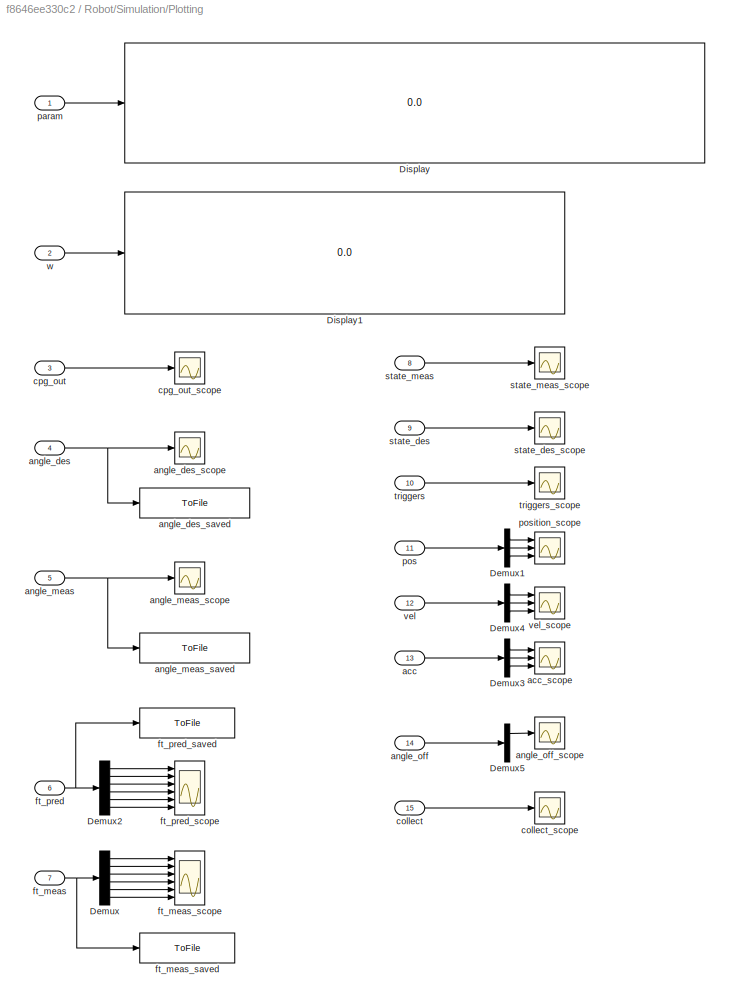
BLOCK [SubSystem] Robot/Simulation/Plotting
  Ports = [15]
  RequestExecContextInheritance = off
  Variant = off
BLOCK [Demux] Robot/Simulation/Plotting/Demux
  DisplayOption = bar
  Outputs = 6
  Ports = [1, 6]
BLOCK [Demux] Robot/Simulation/Plotting/Demux1
  Commented = on
  DisplayOption = bar
  Outputs = 3
  Ports = [1, 3]
BLOCK [Demux] Robot/Simulation/Plotting/Demux2
  DisplayOption = bar
  Outputs = 6
  Ports = [1, 6]
BLOCK [Demux] Robot/Simulation/Plotting/Demux3
  Commented = on
  DisplayOption = bar
  Outputs = 3
  Ports = [1, 3]
BLOCK [Demux] Robot/Simulation/Plotting/Demux4
  Commented = on
  DisplayOption = bar
  Outputs = 3
  Ports = [1, 3]
BLOCK [Demux] Robot/Simulation/Plotting/Demux5
  DisplayOption = bar
  Outputs = 3
  Ports = [1, 3]
BLOCK [Display] Robot/Simulation/Plotting/Display
  Commented = on
  Decimation = 1
  Ports = [1]
BLOCK [Display] Robot/Simulation/Plotting/Display1
  Commented = on
  Decimation = 1
  Ports = [1]
BLOCK [Inport] Robot/Simulation/Plotting/acc
  IconDisplay = Port number
  Port = 13
BLOCK [Scope] Robot/Simulation/Plotting/acc_scope
  Commented = on
  NumInputPorts = 3
  Ports = [3]
  ScopeSpecificationString = Simulink.scopes.TimeScopeBlockCfg('CurrentConfiguration', extmgr.ConfigurationSet(extmgr.Configuration('Core','General UI',true),extmgr.Configuration('Core','Source UI',true),extmgr.Configuration('Sources','WiredSimulink',true,'DataLoggingVariableName','ScopeData4','DataLoggingLimitDataPoints',true,'DataLoggingSaveFormat','Array','DataLoggingDecimation','1','DataLoggingDecimateData',true),extmgr.C...<+165ch>
BLOCK [Inport] Robot/Simulation/Plotting/angle_des
  IconDisplay = Port number
  Port = 4
BLOCK [ToFile] Robot/Simulation/Plotting/angle_des_saved
  Commented = on
  Filename = angle_des_saved.mat
  MatrixName = angle_des_saved
  Ports = [1]
BLOCK [Scope] Robot/Simulation/Plotting/angle_des_scope
  Ports = [1]
  ScopeSpecificationString = Simulink.scopes.TimeScopeBlockCfg('CurrentConfiguration', extmgr.ConfigurationSet(extmgr.Configuration('Core','General UI',true,'FigureColor',[0 0 0]),extmgr.Configuration('Core','Source UI',true),extmgr.Configuration('Sources','WiredSimulink',true,'DataLoggingVariableName','ScopeData7'),extmgr.Configuration('Visuals','Time Domain',true,'SerializedDisplays',{struct('MinYLimReal','-132.88985','MaxY...<+1580ch>
BLOCK [Inport] Robot/Simulation/Plotting/angle_meas
  IconDisplay = Port number
  Port = 5
BLOCK [ToFile] Robot/Simulation/Plotting/angle_meas_saved
  Commented = on
  Filename = angle_meas_saved.mat
  MatrixName = angle_meas_saved
  Ports = [1]
BLOCK [Scope] Robot/Simulation/Plotting/angle_meas_scope
  Ports = [1]
  ScopeSpecificationString = Simulink.scopes.TimeScopeBlockCfg('CurrentConfiguration', extmgr.ConfigurationSet(extmgr.Configuration('Core','General UI',true,'FigureColor',[0 0 0]),extmgr.Configuration('Core','Source UI',true),extmgr.Configuration('Sources','WiredSimulink',true,'DataLoggingVariableName','ScopeData2'),extmgr.Configuration('Visuals','Time Domain',true,'SerializedDisplays',{struct('MinYLimReal','-56.25','MaxYLimR...<+1542ch>
BLOCK [Inport] Robot/Simulation/Plotting/angle_off
  IconDisplay = Port number
  Port = 14
BLOCK [Scope] Robot/Simulation/Plotting/angle_off_scope
  Ports = [1]
  ScopeSpecificationString = Simulink.scopes.TimeScopeBlockCfg('CurrentConfiguration', extmgr.ConfigurationSet(extmgr.Configuration('Core','General UI',true,'FigureColor',[0 0 0]),extmgr.Configuration('Core','Source UI',true),extmgr.Configuration('Sources','WiredSimulink',true,'DataLoggingVariableName','ScopeData1'),extmgr.Configuration('Visuals','Time Domain',true,'SerializedDisplays',{struct('MinYLimReal','-202.5','MaxYLimR...<+1523ch>
BLOCK [Inport] Robot/Simulation/Plotting/collect
  IconDisplay = Port number
  Port = 15
BLOCK [Scope] Robot/Simulation/Plotting/collect_scope
  Ports = [1]
  ScopeSpecificationString = Simulink.scopes.TimeScopeBlockCfg('CurrentConfiguration', extmgr.ConfigurationSet(extmgr.Configuration('Core','General UI',true,'FigureColor',[0 0 0]),extmgr.Configuration('Core','Source UI',true),extmgr.Configuration('Sources','WiredSimulink',true,'DataLoggingVariableName','ScopeData2'),extmgr.Configuration('Visuals','Time Domain',true,'SerializedDisplays',{struct('MinYLimReal','-0.125','MaxYLimR...<+1522ch>
BLOCK [Inport] Robot/Simulation/Plotting/cpg_out
  IconDisplay = Port number
  Port = 3
BLOCK [Scope] Robot/Simulation/Plotting/cpg_out_scope
  Commented = on
  Ports = [1]
  ScopeSpecificationString = Simulink.scopes.TimeScopeBlockCfg('CurrentConfiguration', extmgr.ConfigurationSet(extmgr.Configuration('Core','General UI',true),extmgr.Configuration('Core','Source UI',true),extmgr.Configuration('Sources','WiredSimulink',true,'DataLoggingVariableName','ScopeData1','DataLoggingLimitDataPoints',true,'DataLoggingSaveFormat','Array','DataLoggingDecimation','1','DataLoggingDecimateData',true),extmgr.C...<+165ch>
BLOCK [Inport] Robot/Simulation/Plotting/ft_meas
  IconDisplay = Port number
  Port = 7
BLOCK [ToFile] Robot/Simulation/Plotting/ft_meas_saved
  Commented = on
  Filename = ft_meas_saved.mat
  MatrixName = ft_meas_saved
  Ports = [1]
BLOCK [Scope] Robot/Simulation/Plotting/ft_meas_scope
  NumInputPorts = 6
  Ports = [6]
  ScopeSpecificationString = Simulink.scopes.TimeScopeBlockCfg('CurrentConfiguration', extmgr.ConfigurationSet(extmgr.Configuration('Core','General UI',true),extmgr.Configuration('Core','Source UI',true),extmgr.Configuration('Sources','WiredSimulink',true,'DataLoggingVariableName','ScopeData3'),extmgr.Configuration('Visuals','Time Domain',true,'SerializedDisplays',{struct('MinYLimReal','-0.85149','MaxYLimReal','0.85149','YLab...<+4925ch>
BLOCK [Inport] Robot/Simulation/Plotting/ft_pred
  IconDisplay = Port number
  Port = 6
BLOCK [ToFile] Robot/Simulation/Plotting/ft_pred_saved
  Commented = on
  Filename = ft_pred_saved.mat
  MatrixName = ft_pred_saved
  Ports = [1]
  SaveFormat = Timeseries
BLOCK [Scope] Robot/Simulation/Plotting/ft_pred_scope
  NumInputPorts = 6
  Ports = [6]
  ScopeSpecificationString = Simulink.scopes.TimeScopeBlockCfg('CurrentConfiguration', extmgr.ConfigurationSet(extmgr.Configuration('Core','General UI',true),extmgr.Configuration('Core','Source UI',true),extmgr.Configuration('Sources','WiredSimulink',true,'DataLoggingVariableName','ScopeData3'),extmgr.Configuration('Visuals','Time Domain',true,'SerializedDisplays',{struct('MinYLimReal','-687.70051','MaxYLimReal','312.63448','...<+4871ch>
BLOCK [Inport] Robot/Simulation/Plotting/param
  IconDisplay = Port number
BLOCK [Inport] Robot/Simulation/Plotting/pos
  IconDisplay = Port number
  Port = 11
BLOCK [Scope] Robot/Simulation/Plotting/position_scope
  Commented = on
  NumInputPorts = 3
  Ports = [3]
  ScopeSpecificationString = Simulink.scopes.TimeScopeBlockCfg('CurrentConfiguration', extmgr.ConfigurationSet(extmgr.Configuration('Core','General UI',true),extmgr.Configuration('Core','Source UI',true),extmgr.Configuration('Sources','WiredSimulink',true,'DataLoggingVariableName','ScopeData5'),extmgr.Configuration('Visuals','Time Domain',true,'SerializedDisplays',{struct('MinYLimReal','-551.70987','MaxYLimReal','72.98758','Y...<+2807ch>
BLOCK [Inport] Robot/Simulation/Plotting/state_des
  IconDisplay = Port number
  Port = 9
BLOCK [Scope] Robot/Simulation/Plotting/state_des_scope
  Commented = on
  Ports = [1]
  ScopeSpecificationString = Simulink.scopes.TimeScopeBlockCfg('CurrentConfiguration', extmgr.ConfigurationSet(extmgr.Configuration('Core','General UI',true),extmgr.Configuration('Core','Source UI',true),extmgr.Configuration('Sources','WiredSimulink',true,'DataLoggingVariableName','ScopeData12'),extmgr.Configuration('Visuals','Time Domain',true,'SerializedDisplays',{struct('MinYLimReal','-0.05242','MaxYLimReal','0.50788','YLa...<+1454ch>
BLOCK [Inport] Robot/Simulation/Plotting/state_meas
  IconDisplay = Port number
  Port = 8
BLOCK [Scope] Robot/Simulation/Plotting/state_meas_scope
  Commented = on
  Ports = [1]
  ScopeSpecificationString = Simulink.scopes.TimeScopeBlockCfg('CurrentConfiguration', extmgr.ConfigurationSet(extmgr.Configuration('Core','General UI',true),extmgr.Configuration('Core','Source UI',true),extmgr.Configuration('Sources','WiredSimulink',true,'DataLoggingVariableName','ScopeData9'),extmgr.Configuration('Visuals','Time Domain',true,'SerializedDisplays',{struct('MinYLimReal','-347.58895','MaxYLimReal','104.95749','...<+1472ch>
BLOCK [Inport] Robot/Simulation/Plotting/triggers
  IconDisplay = Port number
  Port = 10
BLOCK [Scope] Robot/Simulation/Plotting/triggers_scope
  Commented = on
  Ports = [1]
  ScopeSpecificationString = Simulink.scopes.TimeScopeBlockCfg('CurrentConfiguration', extmgr.ConfigurationSet(extmgr.Configuration('Core','General UI',true),extmgr.Configuration('Core','Source UI',true),extmgr.Configuration('Sources','WiredSimulink',true,'DataLoggingVariableName','ScopeData8'),extmgr.Configuration('Visuals','Time Domain',true,'SerializedDisplays',{struct('MinYLimReal','-0.125','MaxYLimReal','1.125','YLabelRe...<+1468ch>
BLOCK [Inport] Robot/Simulation/Plotting/vel
  IconDisplay = Port number
  Port = 12
BLOCK [Scope] Robot/Simulation/Plotting/vel_scope
  Commented = on
  NumInputPorts = 3
  Ports = [3]
  ScopeSpecificationString = Simulink.scopes.TimeScopeBlockCfg('CurrentConfiguration', extmgr.ConfigurationSet(extmgr.Configuration('Core','General UI',true),extmgr.Configuration('Core','Source UI',true),extmgr.Configuration('Sources','WiredSimulink',true,'DataLoggingVariableName','ScopeData6'),extmgr.Configuration('Visuals','Time Domain',true,'SerializedDisplays',{struct('MinYLimReal','-69.65378','MaxYLimReal','23.85009','YL...<+2752ch>
BLOCK [Inport] Robot/Simulation/Plotting/w
  IconDisplay = Port number
  Port = 2
BLOCK [Reference] Robot/Simulation/QS Model  REF=qs_model/QS Model  (lib defined in slx_6671489f3add)
  Ports = [1, 1]
  SourceBlock = qs_model/QS Model
  SourceType = SubSystem
BLOCK [Inport] Robot/Simulation/angle_bias
  IconDisplay = Port number
  Port = 5
BLOCK [Inport] Robot/Simulation/angle_des
  IconDisplay = Port number
  Port = 6
BLOCK [Outport] Robot/Simulation/angle_meas
  IconDisplay = Port number
BLOCK [Inport] Robot/Simulation/angle_off
  IconDisplay = Port number
  Port = 8
BLOCK [Inport] Robot/Simulation/collect
  IconDisplay = Port number
  Port = 9
BLOCK [Inport] Robot/Simulation/control
  IconDisplay = Port number
  PortDimensions = 3
BLOCK [Outport] Robot/Simulation/ft_meas_filtered
  IconDisplay = Port number
  Port = 3
BLOCK [Outport] Robot/Simulation/ft_meas_unfiltered
  IconDisplay = Port number
  Port = 2
BLOCK [Inport] Robot/Simulation/ft_pred
  IconDisplay = Port number
  Port = 7
BLOCK [Inport] Robot/Simulation/gravity
  IconDisplay = Port number
  Port = 4
BLOCK [Inport] Robot/Simulation/param
  IconDisplay = Port number
  Port = 10
BLOCK [Inport] Robot/Simulation/sensor_bias
  IconDisplay = Port number
  Port = 3
BLOCK [Inport] Robot/Simulation/write_type
  IconDisplay = Port number
  Port = 2
BLOCK [Inport] Robot/angle_des
  IconDisplay = Port number
  PortDimensions = 3
BLOCK [Outport] Robot/angle_meas
  IconDisplay = Port number
BLOCK [Inport] Robot/angle_off
  IconDisplay = Port number
  Port = 4
  PortDimensions = 3
BLOCK [Inport] Robot/collect
  IconDisplay = Port number
  Port = 5
BLOCK [Outport] Robot/ft_meas
  IconDisplay = Port number
  Port = 2
BLOCK [Inport] Robot/ft_pred
  IconDisplay = Port number
  Port = 2
  PortDimensions = 6
BLOCK [Inport] Robot/param
  IconDisplay = Port number
  Port = 3
  PortDimensions = 7
BLOCK [Inport] Robot/recalibrate
  IconDisplay = Port number
  Port = 6
BLOCK [Outport] Robot/start
  IconDisplay = Port number
  Port = 3
BLOCK [Stop] Stop Simulation
ANNOTATION Robot/Real/Processing: ONLY DO THIS IF NOT MOVING ROT OR DEV MOTORS
ANNOTATION Robot/Real/Speedgoat IO: Blocks taken from Efe's flapp_for_max_force_3dof_cpg
ANNOTATION Robot/Real/Speedgoat IO: The blocks below continuously read the serial ports. If a read instruction is sent to the motor from the above blocks, a packet will be sent to through the serial pins. The "fcn" block only updates the angle if a legitimate packet is sent by the motor.
ANNOTATION Robot/Real/Speedgoat IO: This part sends signals to the motors to either read or write to their control tables.
NET CPG + Forward model/Add:1 -> CPG + Forward model/Forward model:1, CPG + Forward model/angle_des:1
LINE CPG + Forward model/CPG/Constant1:1 -> CPG + Forward model/CPG/phase2control:2
LINE CPG + Forward model/CPG/Constant:1 -> CPG + Forward model/CPG/Oscilator Network:7
NET CPG + Forward model/CPG/Integrator1:1 -> CPG + Forward model/CPG/Integrator2:1, CPG + Forward model/CPG/Oscilator Network:9
NET CPG + Forward model/CPG/Integrator2:1 -> CPG + Forward model/CPG/Oscilator Network:8, CPG + Forward model/CPG/phase2control:3
NET CPG + Forward model/CPG/Integrator:1 -> CPG + Forward model/CPG/Oscilator Network:1, CPG + Forward model/CPG/phase2control:1
LINE CPG + Forward model/CPG/Oscilator Network:1 -> CPG + Forward model/CPG/Integrator:1
LINE CPG + Forward model/CPG/Oscilator Network:2 -> CPG + Forward model/CPG/Integrator1:1
LINE CPG + Forward model/CPG/par:1 -> CPG + Forward model/CPG/par_rearrange:1
LINE CPG + Forward model/CPG/par_rearrange:1 -> CPG + Forward model/CPG/Oscilator Network:2
LINE CPG + Forward model/CPG/par_rearrange:2 -> CPG + Forward model/CPG/Oscilator Network:3
LINE CPG + Forward model/CPG/par_rearrange:3 -> CPG + Forward model/CPG/Oscilator Network:4
LINE CPG + Forward model/CPG/par_rearrange:4 -> CPG + Forward model/CPG/Oscilator Network:5
LINE CPG + Forward model/CPG/phase2control:1 -> CPG + Forward model/CPG/cpg_out:1
LINE CPG + Forward model/CPG/w:1 -> CPG + Forward model/CPG/Oscilator Network:6
LINE CPG + Forward model/CPG:1 -> CPG + Forward model/Convert to motor angle:1
LINE CPG + Forward model/Convert to motor angle/Add:1 -> CPG + Forward model/Convert to motor angle/Demux:1
LINE CPG + Forward model/Convert to motor angle/Demux:1 -> CPG + Forward model/Convert to motor angle/Saturation:1
LINE CPG + Forward model/Convert to motor angle/Demux:2 -> CPG + Forward model/Convert to motor angle/Saturation1:1
LINE CPG + Forward model/Convert to motor angle/Demux:3 -> CPG + Forward model/Convert to motor angle/Saturation2:1
LINE CPG + Forward model/Convert to motor angle/Mux:1 -> CPG + Forward model/Convert to motor angle/angle_des:1
LINE CPG + Forward model/Convert to motor angle/Saturation1:1 -> CPG + Forward model/Convert to motor angle/Mux:2
LINE CPG + Forward model/Convert to motor angle/Saturation2:1 -> CPG + Forward model/Convert to motor angle/Mux:3
LINE CPG + Forward model/Convert to motor angle/Saturation:1 -> CPG + Forward model/Convert to motor angle/Mux:1
LINE CPG + Forward model/Convert to motor angle/correction:1 -> CPG + Forward model/Convert to motor angle/Add:2
LINE CPG + Forward model/Convert to motor angle/cpg_out:1 -> CPG + Forward model/Convert to motor angle/Add:1
LINE CPG + Forward model/Convert to motor angle:1 -> CPG + Forward model/Add:1
LINE CPG + Forward model/Forward model/QS Model:1 -> CPG + Forward model/Forward model/ft_pred:1
LINE CPG + Forward model/Forward model/angle_des:1 -> CPG + Forward model/Forward model/QS Model:1
LINE CPG + Forward model/Forward model:1 -> CPG + Forward model/ft_pred:1
LINE CPG + Forward model/angle_off:1 -> CPG + Forward model/Add:2
LINE CPG + Forward model/param:1 -> CPG + Forward model/CPG:1
LINE CPG + Forward model/w:1 -> CPG + Forward model/CPG:2
LINE CPG + Forward model:1 -> Robot:1
LINE CPG + Forward model:2 -> Robot:2
LINE Clock:1 -> For data collection:2
NET Delay1:1 -> CPG + Forward model:enable, For data collection:1
LINE Delay:1 -> Stop Simulation:1
NET For data collection:1 -> CPG + Forward model:3, Robot:3
LINE For data collection:2 -> CPG + Forward model:4
NET For data collection:3 -> CPG + Forward model:5, Robot:4
LINE For data collection:4 -> Robot:5
LINE For data collection:5 -> Robot:6
LINE For data collection:6 -> Delay:1
LINE Robot/Delay1:1 -> Robot/Robot states:2
LINE Robot/Delay2:1 -> Robot/Robot states:1
LINE Robot/Real/Gain:1 -> Robot/Real/Plotting:11
LINE Robot/Real/Plotting/Delay1:1 -> Robot/Real/Plotting/Demux2:1
LINE Robot/Real/Plotting/Delay:1 -> Robot/Real/Plotting/Subtract:1
LINE Robot/Real/Plotting/Demux1:1 -> Robot/Real/Plotting/Mux:2
LINE Robot/Real/Plotting/Demux1:2 -> Robot/Real/Plotting/Mux2:2
LINE Robot/Real/Plotting/Demux1:3 -> Robot/Real/Plotting/Mux3:2
LINE Robot/Real/Plotting/Demux1:4 -> Robot/Real/Plotting/Mux4:2
LINE Robot/Real/Plotting/Demux1:5 -> Robot/Real/Plotting/Mux5:2
LINE Robot/Real/Plotting/Demux1:6 -> Robot/Real/Plotting/Mux6:2
LINE Robot/Real/Plotting/Demux2:1 -> Robot/Real/Plotting/Mux:1
LINE Robot/Real/Plotting/Demux2:2 -> Robot/Real/Plotting/Mux2:1
LINE Robot/Real/Plotting/Demux2:3 -> Robot/Real/Plotting/Mux3:1
LINE Robot/Real/Plotting/Demux2:4 -> Robot/Real/Plotting/Mux4:1
LINE Robot/Real/Plotting/Demux2:5 -> Robot/Real/Plotting/Mux5:1
LINE Robot/Real/Plotting/Demux2:6 -> Robot/Real/Plotting/Mux6:1
LINE Robot/Real/Plotting/Demux3:1 -> Robot/Real/Plotting/Mux1:6
LINE Robot/Real/Plotting/Gain:1 -> Robot/Real/Plotting/Scope 10:1
LINE Robot/Real/Plotting/Mux1:1 -> Robot/Real/Plotting/Gain:1
LINE Robot/Real/Plotting/Mux2:1 -> Robot/Real/Plotting/Scope 2:1
LINE Robot/Real/Plotting/Mux3:1 -> Robot/Real/Plotting/Scope 3:1
LINE Robot/Real/Plotting/Mux4:1 -> Robot/Real/Plotting/Scope 4:1
LINE Robot/Real/Plotting/Mux5:1 -> Robot/Real/Plotting/Scope 5:1
LINE Robot/Real/Plotting/Mux6:1 -> Robot/Real/Plotting/Scope 6:1
LINE Robot/Real/Plotting/Mux7:1 -> Robot/Real/Plotting/Scope 8:1
LINE Robot/Real/Plotting/Mux:1 -> Robot/Real/Plotting/Scope 1:1
LINE Robot/Real/Plotting/Subtract:1 -> Robot/Real/Plotting/Mux7:1
NET Robot/Real/Plotting/angle_bias:1 -> Robot/Real/Plotting/Mux1:10, Robot/Real/Plotting/Mux7:2
NET Robot/Real/Plotting/angle_des:1 -> Robot/Real/Plotting/Delay:1, Robot/Real/Plotting/Mux1:3
NET Robot/Real/Plotting/angle_meas:1 -> Robot/Real/Plotting/Mux1:4, Robot/Real/Plotting/Scope 7:1, Robot/Real/Plotting/Subtract:2
LINE Robot/Real/Plotting/angle_offset:1 -> Robot/Real/Plotting/Demux3:1
LINE Robot/Real/Plotting/collect:1 -> Robot/Real/Plotting/Mux1:5
NET Robot/Real/Plotting/ft_meas_filtered:1 -> Robot/Real/Plotting/Demux1:1, Robot/Real/Plotting/Mux1:2
NET Robot/Real/Plotting/ft_pred:1 -> Robot/Real/Plotting/Delay1:1, Robot/Real/Plotting/Mux1:1
NET Robot/Real/Plotting/gravity:1 -> Robot/Real/Plotting/Mux1:9, Robot/Real/Plotting/Scope 9:1
LINE Robot/Real/Plotting/param:1 -> Robot/Real/Plotting/Mux1:7
NET Robot/Real/Plotting/sensor_bias:1 -> Robot/Real/Plotting/Mux1:8, Robot/Real/Plotting/Mux7:3
LINE Robot/Real/Plotting/voltages:1 -> Robot/Real/Plotting/Mux1:11
LINE Robot/Real/Processing/Change Coordinates:1 -> Robot/Real/Processing/ft_meas_filtered:1
LINE Robot/Real/Processing/Correct Angle Bias:1 -> Robot/Real/Processing/Subtract2:1
LINE Robot/Real/Processing/R_ds:1 -> Robot/Real/Processing/Change Coordinates:2
LINE Robot/Real/Processing/Subtract2:1 -> Robot/Real/Processing/Change Coordinates:1
LINE Robot/Real/Processing/Subtract:1 -> Robot/Real/Processing/Correct Angle Bias:1
LINE Robot/Real/Processing/angle_bias:1 -> Robot/Real/Processing/Correct Angle Bias:2
LINE Robot/Real/Processing/angle_meas:1 -> Robot/Real/Processing/ang_meas_filtered:1
LINE Robot/Real/Processing/ft_meas:1 -> Robot/Real/Processing/Subtract:1
LINE Robot/Real/Processing/gravity:1 -> Robot/Real/Processing/Subtract2:2
LINE Robot/Real/Processing/sensor_bias:1 -> Robot/Real/Processing/Subtract:2
NET Robot/Real/Processing:1 -> Robot/Real/Plotting:5, Robot/Real/angle_meas:1
NET Robot/Real/Processing:2 -> Robot/Real/Plotting:6, Robot/Real/ft_meas_filtered:1
LINE Robot/Real/Speedgoat IO/ Offset:1 -> Robot/Real/Speedgoat IO/Subtract1:2
LINE Robot/Real/Speedgoat IO/Calculate FT1:1 -> Robot/Real/Speedgoat IO/ft_meas:1
LINE Robot/Real/Speedgoat IO/Constant1:1 -> Robot/Real/Speedgoat IO/Serial Read HW-Dev. Rot:1
LINE Robot/Real/Speedgoat IO/Constant2:1 -> Robot/Real/Speedgoat IO/Serial Read HW-Stroke:1
LINE Robot/Real/Speedgoat IO/Constant3:1 -> Robot/Real/Speedgoat IO/Serial Write HW FIFO2:2
LINE Robot/Real/Speedgoat IO/Constant4:1 -> Robot/Real/Speedgoat IO/Serial Write HW FIFO3:2
LINE Robot/Real/Speedgoat IO/Convert Dev Rot:1 -> Robot/Real/Speedgoat IO/Read angle2:1
LINE Robot/Real/Speedgoat IO/Convert Stroke:1 -> Robot/Real/Speedgoat IO/Read angle1:1
LINE Robot/Real/Speedgoat IO/Convert to int2:1 -> Robot/Real/Speedgoat IO/Serial Write HW FIFO3:1
LINE Robot/Real/Speedgoat IO/Convert to int:1 -> Robot/Real/Speedgoat IO/Serial Write HW FIFO2:1
LINE Robot/Real/Speedgoat IO/Delay2:1 -> Robot/Real/Speedgoat IO/Read angle1:2
LINE Robot/Real/Speedgoat IO/Delay3:1 -> Robot/Real/Speedgoat IO/Read angle2:2
LINE Robot/Real/Speedgoat IO/Delay6:1 -> Robot/Real/Speedgoat IO/Read angle2:3
LINE Robot/Real/Speedgoat IO/Delay7:1 -> Robot/Real/Speedgoat IO/Read angle1:3
LINE Robot/Real/Speedgoat IO/Demux1:1 -> Robot/Real/Speedgoat IO/Gain Dev2:1
LINE Robot/Real/Speedgoat IO/Demux1:2 -> Robot/Real/Speedgoat IO/Gain Rot2:1
LINE Robot/Real/Speedgoat IO/Demux:1 -> Robot/Real/Speedgoat IO/Gain St:1
LINE Robot/Real/Speedgoat IO/Demux:2 -> Robot/Real/Speedgoat IO/Gain Dev:1
LINE Robot/Real/Speedgoat IO/Demux:3 -> Robot/Real/Speedgoat IO/Gain Rot:1
LINE Robot/Real/Speedgoat IO/Dev Offset:1 -> Robot/Real/Speedgoat IO/Gain Dev1:1
LINE Robot/Real/Speedgoat IO/FT20513 Aug 2019:1 -> Robot/Real/Speedgoat IO/Calculate FT1:2
LINE Robot/Real/Speedgoat IO/Gain Dev1:1 -> Robot/Real/Speedgoat IO/Write Stroke1:6
LINE Robot/Real/Speedgoat IO/Gain Dev2:1 -> Robot/Real/Speedgoat IO/Mux4:2
LINE Robot/Real/Speedgoat IO/Gain Dev:1 -> Robot/Real/Speedgoat IO/Write Stroke1:2
LINE Robot/Real/Speedgoat IO/Gain Rot1:1 -> Robot/Real/Speedgoat IO/Write Stroke1:7
LINE Robot/Real/Speedgoat IO/Gain Rot2:1 -> Robot/Real/Speedgoat IO/Mux4:3
LINE Robot/Real/Speedgoat IO/Gain Rot:1 -> Robot/Real/Speedgoat IO/Write Stroke1:3
LINE Robot/Real/Speedgoat IO/Gain St1:1 -> Robot/Real/Speedgoat IO/Write Stroke1:5
LINE Robot/Real/Speedgoat IO/Gain St2:1 -> Robot/Real/Speedgoat IO/Mux4:1
LINE Robot/Real/Speedgoat IO/Gain St:1 -> Robot/Real/Speedgoat IO/Write Stroke1:1
LINE Robot/Real/Speedgoat IO/IO32x Analog input:1 -> Robot/Real/Speedgoat IO/Mux1:1
LINE Robot/Real/Speedgoat IO/IO32x Analog input:3 -> Robot/Real/Speedgoat IO/Mux1:2
LINE Robot/Real/Speedgoat IO/IO32x Analog input:4 -> Robot/Real/Speedgoat IO/Mux1:3
LINE Robot/Real/Speedgoat IO/IO32x Analog input:5 -> Robot/Real/Speedgoat IO/Mux1:4
LINE Robot/Real/Speedgoat IO/IO32x Analog input:6 -> Robot/Real/Speedgoat IO/Mux1:5
LINE Robot/Real/Speedgoat IO/IO32x Analog input:7 -> Robot/Real/Speedgoat IO/Mux1:6
NET Robot/Real/Speedgoat IO/Mux1:1 -> Robot/Real/Speedgoat IO/Calculate FT1:1, Robot/Real/Speedgoat IO/voltages:1
LINE Robot/Real/Speedgoat IO/Mux4:1 -> Robot/Real/Speedgoat IO/Subtract1:1
NET Robot/Real/Speedgoat IO/Read angle1:1 -> Robot/Real/Speedgoat IO/Delay2:1, Robot/Real/Speedgoat IO/Delay7:1, Robot/Real/Speedgoat IO/Gain St2:1
NET Robot/Real/Speedgoat IO/Read angle2:1 -> Robot/Real/Speedgoat IO/Delay3:1, Robot/Real/Speedgoat IO/Delay6:1, Robot/Real/Speedgoat IO/Demux1:1
LINE Robot/Real/Speedgoat IO/Reshape:1 -> Robot/Real/Speedgoat IO/angle_meas:1
LINE Robot/Real/Speedgoat IO/Rot Offset:1 -> Robot/Real/Speedgoat IO/Gain Rot1:1
LINE Robot/Real/Speedgoat IO/Serial Read HW-Dev. Rot:1 -> Robot/Real/Speedgoat IO/Convert Dev Rot:1
LINE Robot/Real/Speedgoat IO/Serial Read HW-Stroke:1 -> Robot/Real/Speedgoat IO/Convert Stroke:1
LINE Robot/Real/Speedgoat IO/Stroke Offset:1 -> Robot/Real/Speedgoat IO/Gain St1:1
LINE Robot/Real/Speedgoat IO/Subtract1:1 -> Robot/Real/Speedgoat IO/Reshape:1
LINE Robot/Real/Speedgoat IO/Write Stroke1:1 -> Robot/Real/Speedgoat IO/Convert to int:1
LINE Robot/Real/Speedgoat IO/Write Stroke1:2 -> Robot/Real/Speedgoat IO/Convert to int2:1
LINE Robot/Real/Speedgoat IO/control:1 -> Robot/Real/Speedgoat IO/Demux:1
LINE Robot/Real/Speedgoat IO/crc_table1:1 -> Robot/Real/Speedgoat IO/Write Stroke1:8
LINE Robot/Real/Speedgoat IO/gain1:1 -> Robot/Real/Speedgoat IO/Calculate FT1:3
LINE Robot/Real/Speedgoat IO/write_type1:1 -> Robot/Real/Speedgoat IO/Read angle1:4
LINE Robot/Real/Speedgoat IO/write_type2:1 -> Robot/Real/Speedgoat IO/Read angle2:4
LINE Robot/Real/Speedgoat IO/write_type:1 -> Robot/Real/Speedgoat IO/Write Stroke1:4
LINE Robot/Real/Speedgoat IO:1 -> Robot/Real/Processing:1
NET Robot/Real/Speedgoat IO:2 -> Robot/Real/Plotting:7, Robot/Real/Processing:2, Robot/Real/ft_meas_unfiltered:1
LINE Robot/Real/Speedgoat IO:3 -> Robot/Real/Plotting:12
NET Robot/Real/angle_bias:1 -> Robot/Real/Gain:1, Robot/Real/Processing:5
LINE Robot/Real/angle_des:1 -> Robot/Real/Plotting:3
LINE Robot/Real/angle_off:1 -> Robot/Real/Plotting:2
LINE Robot/Real/collect:1 -> Robot/Real/Plotting:1
LINE Robot/Real/control:1 -> Robot/Real/Speedgoat IO:1
LINE Robot/Real/ft_pred:1 -> Robot/Real/Plotting:4
NET Robot/Real/gravity:1 -> Robot/Real/Plotting:10, Robot/Real/Processing:4
LINE Robot/Real/param:1 -> Robot/Real/Plotting:8
NET Robot/Real/sensor_bias:1 -> Robot/Real/Plotting:9, Robot/Real/Processing:3
LINE Robot/Real/write_type:1 -> Robot/Real/Speedgoat IO:2
NET Robot/Real:1 -> Robot/Delay2:1, Robot/angle_meas:1
LINE Robot/Real:2 -> Robot/Delay1:1
LINE Robot/Real:3 -> Robot/ft_meas:1
NET Robot/Robot states:1 -> Robot/Real:1, Robot/Simulation:1
NET Robot/Robot states:2 -> Robot/Real:2, Robot/Simulation:2
NET Robot/Robot states:3 -> Robot/Real:3, Robot/Simulation:3
NET Robot/Robot states:4 -> Robot/Real:4, Robot/Simulation:4
NET Robot/Robot states:5 -> Robot/Real:5, Robot/Simulation:5
LINE Robot/Robot states:6 -> Robot/start:1
LINE Robot/Simulation/Add:1 -> Robot/Simulation/QS Model:1
LINE Robot/Simulation/Band-Limited White Noise:1 -> Robot/Simulation/Add:2
NET Robot/Simulation/Delay1:1 -> Robot/Simulation/Plotting:7, Robot/Simulation/ft_meas_filtered:1, Robot/Simulation/ft_meas_unfiltered:1
NET Robot/Simulation/Delay:1 -> Robot/Simulation/Add:1, Robot/Simulation/Plotting:5, Robot/Simulation/angle_meas:1
LINE Robot/Simulation/Plotting/Demux1:1 -> Robot/Simulation/Plotting/position_scope:1
LINE Robot/Simulation/Plotting/Demux1:2 -> Robot/Simulation/Plotting/position_scope:2
LINE Robot/Simulation/Plotting/Demux1:3 -> Robot/Simulation/Plotting/position_scope:3
LINE Robot/Simulation/Plotting/Demux2:1 -> Robot/Simulation/Plotting/ft_pred_scope:1
LINE Robot/Simulation/Plotting/Demux2:2 -> Robot/Simulation/Plotting/ft_pred_scope:2
LINE Robot/Simulation/Plotting/Demux2:3 -> Robot/Simulation/Plotting/ft_pred_scope:3
LINE Robot/Simulation/Plotting/Demux2:4 -> Robot/Simulation/Plotting/ft_pred_scope:4
LINE Robot/Simulation/Plotting/Demux2:5 -> Robot/Simulation/Plotting/ft_pred_scope:5
LINE Robot/Simulation/Plotting/Demux2:6 -> Robot/Simulation/Plotting/ft_pred_scope:6
LINE Robot/Simulation/Plotting/Demux3:1 -> Robot/Simulation/Plotting/acc_scope:1
LINE Robot/Simulation/Plotting/Demux3:2 -> Robot/Simulation/Plotting/acc_scope:2
LINE Robot/Simulation/Plotting/Demux3:3 -> Robot/Simulation/Plotting/acc_scope:3
LINE Robot/Simulation/Plotting/Demux4:1 -> Robot/Simulation/Plotting/vel_scope:1
LINE Robot/Simulation/Plotting/Demux4:2 -> Robot/Simulation/Plotting/vel_scope:2
LINE Robot/Simulation/Plotting/Demux4:3 -> Robot/Simulation/Plotting/vel_scope:3
LINE Robot/Simulation/Plotting/Demux5:1 -> Robot/Simulation/Plotting/angle_off_scope:1
LINE Robot/Simulation/Plotting/Demux:1 -> Robot/Simulation/Plotting/ft_meas_scope:1
LINE Robot/Simulation/Plotting/Demux:2 -> Robot/Simulation/Plotting/ft_meas_scope:2
LINE Robot/Simulation/Plotting/Demux:3 -> Robot/Simulation/Plotting/ft_meas_scope:3
LINE Robot/Simulation/Plotting/Demux:4 -> Robot/Simulation/Plotting/ft_meas_scope:4
LINE Robot/Simulation/Plotting/Demux:5 -> Robot/Simulation/Plotting/ft_meas_scope:5
LINE Robot/Simulation/Plotting/Demux:6 -> Robot/Simulation/Plotting/ft_meas_scope:6
LINE Robot/Simulation/Plotting/acc:1 -> Robot/Simulation/Plotting/Demux3:1
NET Robot/Simulation/Plotting/angle_des:1 -> Robot/Simulation/Plotting/angle_des_saved:1, Robot/Simulation/Plotting/angle_des_scope:1
NET Robot/Simulation/Plotting/angle_meas:1 -> Robot/Simulation/Plotting/angle_meas_saved:1, Robot/Simulation/Plotting/angle_meas_scope:1
LINE Robot/Simulation/Plotting/angle_off:1 -> Robot/Simulation/Plotting/Demux5:1
LINE Robot/Simulation/Plotting/collect:1 -> Robot/Simulation/Plotting/collect_scope:1
LINE Robot/Simulation/Plotting/cpg_out:1 -> Robot/Simulation/Plotting/cpg_out_scope:1
NET Robot/Simulation/Plotting/ft_meas:1 -> Robot/Simulation/Plotting/Demux:1, Robot/Simulation/Plotting/ft_meas_saved:1
NET Robot/Simulation/Plotting/ft_pred:1 -> Robot/Simulation/Plotting/Demux2:1, Robot/Simulation/Plotting/ft_pred_saved:1
LINE Robot/Simulation/Plotting/param:1 -> Robot/Simulation/Plotting/Display:1
LINE Robot/Simulation/Plotting/pos:1 -> Robot/Simulation/Plotting/Demux1:1
LINE Robot/Simulation/Plotting/state_des:1 -> Robot/Simulation/Plotting/state_des_scope:1
LINE Robot/Simulation/Plotting/state_meas:1 -> Robot/Simulation/Plotting/state_meas_scope:1
LINE Robot/Simulation/Plotting/triggers:1 -> Robot/Simulation/Plotting/triggers_scope:1
LINE Robot/Simulation/Plotting/vel:1 -> Robot/Simulation/Plotting/Demux4:1
LINE Robot/Simulation/Plotting/w:1 -> Robot/Simulation/Plotting/Display1:1
LINE Robot/Simulation/QS Model:1 -> Robot/Simulation/Delay1:1
LINE Robot/Simulation/angle_bias:1 -> Robot/Simulation/Gain:1
LINE Robot/Simulation/angle_des:1 -> Robot/Simulation/Plotting:4
LINE Robot/Simulation/angle_off:1 -> Robot/Simulation/Plotting:14
LINE Robot/Simulation/collect:1 -> Robot/Simulation/Plotting:15
LINE Robot/Simulation/control:1 -> Robot/Simulation/Delay:1
LINE Robot/Simulation/ft_pred:1 -> Robot/Simulation/Plotting:6
LINE Robot/Simulation/param:1 -> Robot/Simulation/Plotting:1
NET Robot/angle_des:1 -> Robot/Real:6, Robot/Robot states:3, Robot/Simulation:6
NET Robot/angle_off:1 -> Robot/Real:8, Robot/Simulation:8
NET Robot/collect:1 -> Robot/Real:9, Robot/Simulation:9
NET Robot/ft_pred:1 -> Robot/Real:7, Robot/Simulation:7
NET Robot/param:1 -> Robot/Real:10, Robot/Simulation:10
LINE Robot/recalibrate:1 -> Robot/Robot states:4
LINE Robot:1 -> CPG + Forward model:1
LINE Robot:2 -> CPG + Forward model:2
LINE Robot:3 -> Delay1:1
note: NET lines group one-source signal fan-out (src -> all destinations, sorted); 1:1 wires keep LINE
CHART CPG + Forward model/CPG/par_rearrange states=1 transitions=1
  STATE_LABEL 'eML_blk_kernel()'
  STATE_LABEL 'SCRIPT:\nfunction [R, rotoffset, frequency, phasediff] = par_rearrange(par)\n\nR          = par(1:3);\nrotoffset  = par(4);\nphasediff  = ([0; par(5:6)])*pi/180;\nfrequency  = par(7);\n'
CHART CPG + Forward model/CPG/phase2control states=1 transitions=1
  STATE_LABEL 'eML_blk_kernel()'
  STATE_LABEL 'SCRIPT:\nfunction angout  = phase2control(phi, N, othervar)\n\n% angout = theta in paper = oscillating set-point in radians\n\nr      = othervar(1:3,1);\nx      = othervar(4:6,1);\n\nangout = nan(3,1);\nangout(1) = r(1)*sin(phi(1));\nangout(2) = r(2)*sin(N*phi(2));\nangout(3) = r(3)*sin(phi(3));\n\nangout = angout + x;'
CHART Robot/Robot states states=15 transitions=16
  STATE_LABEL 'INIT1\nentry:\n\twrite_type = 0;\n\tinitilizer = 4;\n\tFT_mean = zeros(6,4);\n\tsensor_bias = zeros(6,1);\n\tgravity = zeros(6,1);\n\tangle_bias = 0;\n\tstart_program = 0; % enable program after initialization only\nduring:\n\twrite_type = 1;'
  STATE_LABEL "initilizer is started at 4. Then robot is moved to 0deg rotation. After it moves, initilizer becomes 3, where it collects FT data for some time and averages them at the end. Then the robot is moved to 90deg, then initilizer becomes 2, and again it becomes 1 when the robot is moved to 180deg. Finally the robot is moved back to 0, the initilizer becomes 0, and although we don't use the FT data colle...<+940ch>"
  STATE_LABEL 'OPERATION'
  STATE_LABEL 'RW_SCHEDULING'
  STATE_LABEL 'READ\nentry:\n\twrite_type = 1;'
  STATE_LABEL 'WRITE\nentry:\n\twrite_type = 2;'
  STATE_LABEL 'CALIBRATION'
  STATE_LABEL "MOVE_SLOW\nentry:\n\tcontrol = position;\nduring:\n\terror    = reference-position;\n\tcontrol = control + (abs(error) > 0.3).* [1,1,0.5]'.*min(max(-0.08,error*0.015),0.08);\nexit:\n\tcontrol = reference;"
  STATE_LABEL "Multiplying by gain_rot so sensor's z axis aligns with rotation motor axis."
  STATE_LABEL 'FLAP\n% follow CPG commands directly\nentry:\n\tcontrol = angle_des;\nduring:\n\tcontrol = angle_des;\nexit:\n\tcontrol = position;\n'
  STATE_LABEL 'WAIT\nentry:\n\tinitilizer= max(initilizer - 1,0);'
  STATE_LABEL 'CALIBRATE\nentry:\nFT_sum = zeros(6,1);\nFT_num = 0;\nduring:\n\t[FT_sum,FT_num] = ftcollection(FT_sum,FT_num, measured_FT);\nexit:\n\tFT_mean(:, initilizer+1) = FT_sum/FT_num;\n\t[sensor_bias,gravity,angle_bias] = calibrate_fun(FT_mean, initilizer, gravity,angle_bias);\n'
  STATE_LABEL '{reference=[0;0;0];}'
  STATE_LABEL '[recalibrate == 1]\n{reference = [0;0;0];\nstart_program = 0;}'
  STATE_LABEL '[all(abs(reference-position)<0.3)]'
  STATE_LABEL '[reference(3) == 0]\n{reference = [0;0;90*gain_rot];}'
  STATE_LABEL '[reference(3) == 90*gain_rot]\n{reference = [0;0;180*gain_rot];}'
  STATE_LABEL '[reference(3) == 180*gain_rot]\n{reference = [0;0;0];}'
  STATE_LABEL '[initilizer >0]'
  STATE_LABEL '{start_program = 1;}'
  STATE_LABEL 'after(4,sec)'
  STATE_LABEL 'after(4,sec)'
  STATE_LABEL 'RW_SCHEDULING'
  STATE_LABEL 'READ\nentry:\n\twrite_type = 1;'
  STATE_LABEL 'WRITE\nentry:\n\twrite_type = 2;'
  STATE_LABEL 'READ\nentry:\n\twrite_type = 1;'
  STATE_LABEL 'WRITE\nentry:\n\twrite_type = 2;'
  STATE_LABEL 'CALIBRATION'
  STATE_LABEL "MOVE_SLOW\nentry:\n\tcontrol = position;\nduring:\n\terror    = reference-position;\n\tcontrol = control + (abs(error) > 0.3).* [1,1,0.5]'.*min(max(-0.08,error*0.015),0.08);\nexit:\n\tcontrol = reference;"
  STATE_LABEL "Multiplying by gain_rot so sensor's z axis aligns with rotation motor axis."
  STATE_LABEL 'FLAP\n% follow CPG commands directly\nentry:\n\tcontrol = angle_des;\nduring:\n\tcontrol = angle_des;\nexit:\n\tcontrol = position;\n'
  STATE_LABEL 'WAIT\nentry:\n\tinitilizer= max(initilizer - 1,0);'
  STATE_LABEL 'CALIBRATE\nentry:\nFT_sum = zeros(6,1);\nFT_num = 0;\nduring:\n\t[FT_sum,FT_num] = ftcollection(FT_sum,FT_num, measured_FT);\nexit:\n\tFT_mean(:, initilizer+1) = FT_sum/FT_num;\n\t[sensor_bias,gravity,angle_bias] = calibrate_fun(FT_mean, initilizer, gravity,angle_bias);\n'
  STATE_LABEL '{reference=[0;0;0];}'
  STATE_LABEL '[recalibrate == 1]\n{reference = [0;0;0];\nstart_program = 0;}'
  STATE_LABEL '[all(abs(reference-position)<0.3)]'
  STATE_LABEL '[reference(3) == 0]\n{reference = [0;0;90*gain_rot];}'
  STATE_LABEL '[reference(3) == 90*gain_rot]\n{reference = [0;0;180*gain_rot];}'
  STATE_LABEL '[reference(3) == 180*gain_rot]\n{reference = [0;0;0];}'
  STATE_LABEL '[initilizer >0]'
CHART Robot/Real/Processing/Correct Angle Bias states=1 transitions=1
  STATE_LABEL 'eML_blk_kernel()'
  STATE_LABEL 'SCRIPT:\nfunction FTnew  = correct_ab(FT,angle)\n\nrotz_angle = [cos(angle), sin(angle), 0; -sin(angle), cos(angle), 0; 0, 0, 1];\nFTnew = [rotz_angle zeros(3); zeros(3) rotz_angle]*FT;\n\nend'
CHART CPG + Forward model/CPG/Oscilator Network states=1 transitions=1
  STATE_LABEL 'eML_blk_kernel()'
  STATE_LABEL 'SCRIPT:\nfunction [phidot, othervarddot] = oscillators(phi, R, rotoffset, frequency, phasediff, weight_mat, N, othervar, othervardot)\n% Translation to "Controlling swimming and crawling in a fish robot using a\n%   central pattern generator" CPG\n\n% phi = phase of oscillations\n% r and R = current and desired amplitude of oscillations (m and M in Efe\'s\n%           paper)\n% x and X = current and desire...<+1526ch>'
CHART Robot/Real/Speedgoat IO/Calculate FT1 states=1 transitions=1
  STATE_LABEL 'eML_blk_kernel()'
  STATE_LABEL 'SCRIPT:\nfunction FT  = calFT(SG,calMatrix,gain)\n%#codegen\n\n% Force Unit: N\n% Torque Unit: N*mm\n\nfor i=1:6\n    calMatrix(:,i) = calMatrix(:,i)/gain(i);\nend\n% SG1=SG;\nFT = calMatrix * (SG);\nend'
CHART Robot/Real/Processing/Change Coordinates states=1 transitions=1
  STATE_LABEL 'eML_blk_kernel()'
  STATE_LABEL 'SCRIPT:\nfunction FTnew = correct_coordinates(FT, R)\n%#codegen\n\n% not that the rotation matrices I use here have -ve sin in opposite places\n% of what Efe had\n% roty = [cos(-pi/2) 0 sin(-pi/2);\n%     0 1 0;\n%     -sin(-pi/2) 0 cos(-pi/2)];\n% \n% rotx = [1 0 0;\n%     0 cos(-pi/2) -sin(-pi/2);\n%     0 sin(-pi/2) cos(-pi/2)];\n% \n% R = roty * rotx;\n\nFTnew = [R zeros(3);zeros(3) R] * FT;\n\nend\n'
CHART For data collection states=11 transitions=14
  STATE_LABEL 'INITIALIZE\nentry:\nending_all = 0;\ndirection = -1;\noffset = [0;0;0];\nrecalibrate = 0;\ncollect = 0;\nN_param = size(param_list,2); % number of CPG parameter sets\nparam_i = 0;\nparam = param_list(:,1);\nw = weight_map;'
  STATE_LABEL 'weight_matrix = w_calculate(w_map,w_adjust,freq)'
  STATE_LABEL 'SCRIPT:\nfunction weight_matrix = w_calculate(w_map,w_adjust,freq)\nweight_matrix = w_map*w_adjust*2*pi*freq/3;\nend\n'
  STATE_LABEL 'DATA_COLLECTION'
  STATE_LABEL '<!DOCTYPE HTML PUBLIC "-//W3C//DTD HTML 4.0//EN" "http://www.w3.org/TR/REC-html40/strict.dtd">\n<html><head><meta name="qrichtext" content="1" /><style type="text/css">\np, li { white-space: pre-wrap; }\n</style></head><body style=" font-family:\'Helvetica\'; font-size:12px; font-weight:400; font-style:normal;">\n<p style=" margin-top:0px; margin-bottom:0px; margin-left:0px; margin-right:0px; -qt-block-...<+137ch>'
  STATE_LABEL 'NEW_TRAJECTORY\nentry:\nt_old = t_now; % time at which block is entered\n% CPG PARAMETERS\nparam_i = param_i + 1;\nparam = param_list(:,param_i);\nfrequency = param(end);\nw = w_calculate(weight_map,weight_adjust,frequency);\n% STROKE OFFSETS\ndirection = -1 * direction; % increment offset in opposite direction\noffset_increment = 5 * direction; % deg, how much to move to next location\noffset_increment_slow...<+432ch>'
  STATE_LABEL 'COLLECT_DATA\nentry:\nt_old = t_now; % time at which block is entered\ncollect = 1;\nexit:\ncollect = 0;'
  STATE_LABEL 'NEW_OFFSET_MOVE_SLOW\nentry:\noffset_old = offset;\nduring:\n% move slow for stroke motor\noffset = offset + [offset_increment_slow;0;0];\nexit:\noffset = offset_old + [offset_increment;0;0];'
  STATE_LABEL 'RECALIBRATING\nentry:\nrecalibrate = 1;\nexit:\nrecalibrate = 0;'
  STATE_LABEL 'NEW_OFFSET_WAIT\nentry:\n% time at which block is entered\nt_old = t_now;'
  STATE_LABEL '[(t_now - t_old) > period_collect]'
  STATE_LABEL '[(offset(1) + offset_increment) < max(offset_limits) &&...\n (offset(1) + offset_increment) > min(offset_limits)]'
  STATE_LABEL '[(t_now - t_old) > period_cooldown_start]'
  STATE_LABEL '[(t_now - t_old) > period_cooldown]'
  STATE_LABEL '[abs(offset(1) - (offset_old(1) + offset_increment)) <= 0.2]'
  STATE_LABEL '[enable == 1]'
  STATE_LABEL '[param_i < N_param]'
  STATE_LABEL '<!DOCTYPE HTML PUBLIC "-//W3C//DTD HTML 4.0//EN" "http://www.w3.org/TR/REC-html40/strict.dtd">\n<html><head><meta name="qrichtext" content="1" /><style type="text/css">\np, li { white-space: pre-wrap; }\n</style></head><body style=" font-family:\'Helvetica\'; font-size:12px; font-weight:400; font-style:normal;">\n<p style=" margin-top:0px; margin-bottom:0px; margin-left:0px; margin-right:0px; -qt-block-...<+137ch>'
  STATE_LABEL 'NEW_TRAJECTORY\nentry:\nt_old = t_now; % time at which block is entered\n% CPG PARAMETERS\nparam_i = param_i + 1;\nparam = param_list(:,param_i);\nfrequency = param(end);\nw = w_calculate(weight_map,weight_adjust,frequency);\n% STROKE OFFSETS\ndirection = -1 * direction; % increment offset in opposite direction\noffset_increment = 5 * direction; % deg, how much to move to next location\noffset_increment_slow...<+432ch>'
  STATE_LABEL 'COLLECT_DATA\nentry:\nt_old = t_now; % time at which block is entered\ncollect = 1;\nexit:\ncollect = 0;'
  STATE_LABEL 'NEW_OFFSET_MOVE_SLOW\nentry:\noffset_old = offset;\nduring:\n% move slow for stroke motor\noffset = offset + [offset_increment_slow;0;0];\nexit:\noffset = offset_old + [offset_increment;0;0];'
  STATE_LABEL 'RECALIBRATING\nentry:\nrecalibrate = 1;\nexit:\nrecalibrate = 0;'
  STATE_LABEL 'NEW_OFFSET_WAIT\nentry:\n% time at which block is entered\nt_old = t_now;'
  STATE_LABEL 'STOP_PROGRAM\nentry:\nending_all = 1;\n% stop wing, non-zero frequency\nparam = [zeros(length(param)-1,1);param(end)];'
  STATE_LABEL 'TODO: GRADUALLY DECREASE AMPLITUDE TO 0, RATHER THAN MAKE PARAM SET 0'
CHART Robot/Real/Speedgoat IO/Read angle1 states=1 transitions=1
  STATE_LABEL 'eML_blk_kernel()'
  STATE_LABEL "SCRIPT:\nfunction angle  = fcn(y, old_angle,old_old_old_angle, write_type)\n%#codegen\n% angle = nan(1);\nangle = old_angle + 0.5*(old_angle-old_old_old_angle); % if there's no new reading\n% ID = 1;\n\nfor i = 1:1:length(y)-5\n    if y(i) == 255 && y(i+1) == 255 && y(i+2) == 253 && y(i+4) == 1 && y(i+5) == 8\n        temp = i;       \n        Para = y(temp+9:temp+12);\n        angle = Position(Para); % upda...<+263ch>"
CHART Robot/Real/Speedgoat IO/Read angle2 states=1 transitions=1
  STATE_LABEL 'eML_blk_kernel()'
  STATE_LABEL "SCRIPT:\nfunction angle   = fcn(y,old_angle,old_old_old_angle,write_type)\n%#codegen\n\n% angle = nan(1, 2);\nangle_2 = old_angle(1) + 0.5*(old_angle(1)-old_old_old_angle(1)); % if there's no new reading\nangle_3 = old_angle(2) + 0.5*(old_angle(2)-old_old_old_angle(2));\n% ID = [2 3];\n\nfor i = 1:1:length(y)-5\n    if y(i) == 255 && y(i+1) == 255 && y(i+2) == 253 && y(i+4) == 2 && y(i+5) == 8\n        temp_...<+687ch>"
CHART Robot/Real/Speedgoat IO/Write Stroke1 states=1 transitions=1
  STATE_LABEL 'eML_blk_kernel()'
  STATE_LABEL "SCRIPT:\nfunction [y_stroke, y_dev_rot] = fcn(stroke,deviation,rotation,write_type,offset_st,offset_dev,offset_rot,crc_table)\n\nID = [1 2 3];\n\nswitch write_type\n    case 0  % Init\n        y_stroke = packetMultiWrite(2,ID,[1 1 1],crc_table)';\n        y_dev_rot = packetMultiWrite(2,ID,[1 1 1],crc_table)';\n    case 1  % Read\n        y_stroke = packetMultiWrite(13,ID(1),[1 1 1],crc_table)';\n        y_de...<+487ch>"
